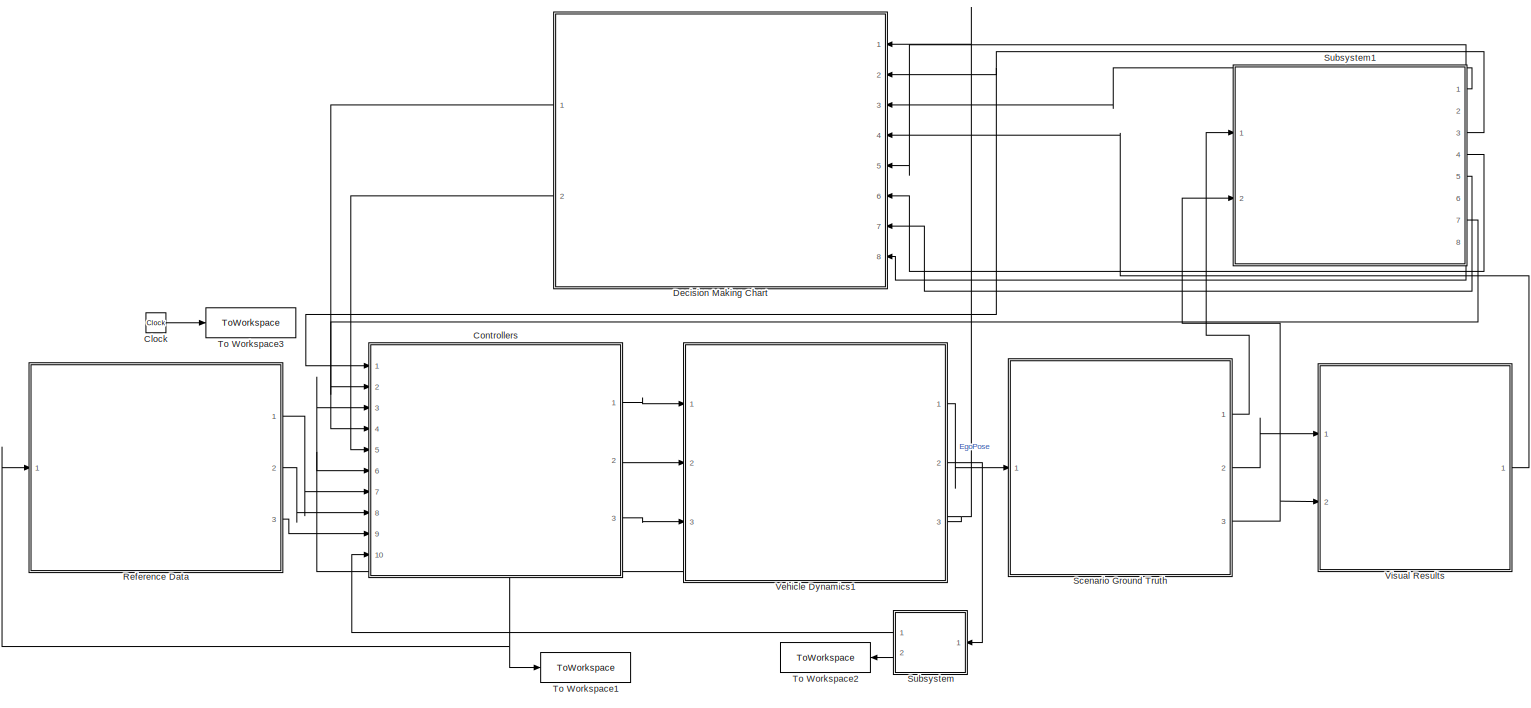
[diagram: root canvas - part 1/1, most of the canvas]
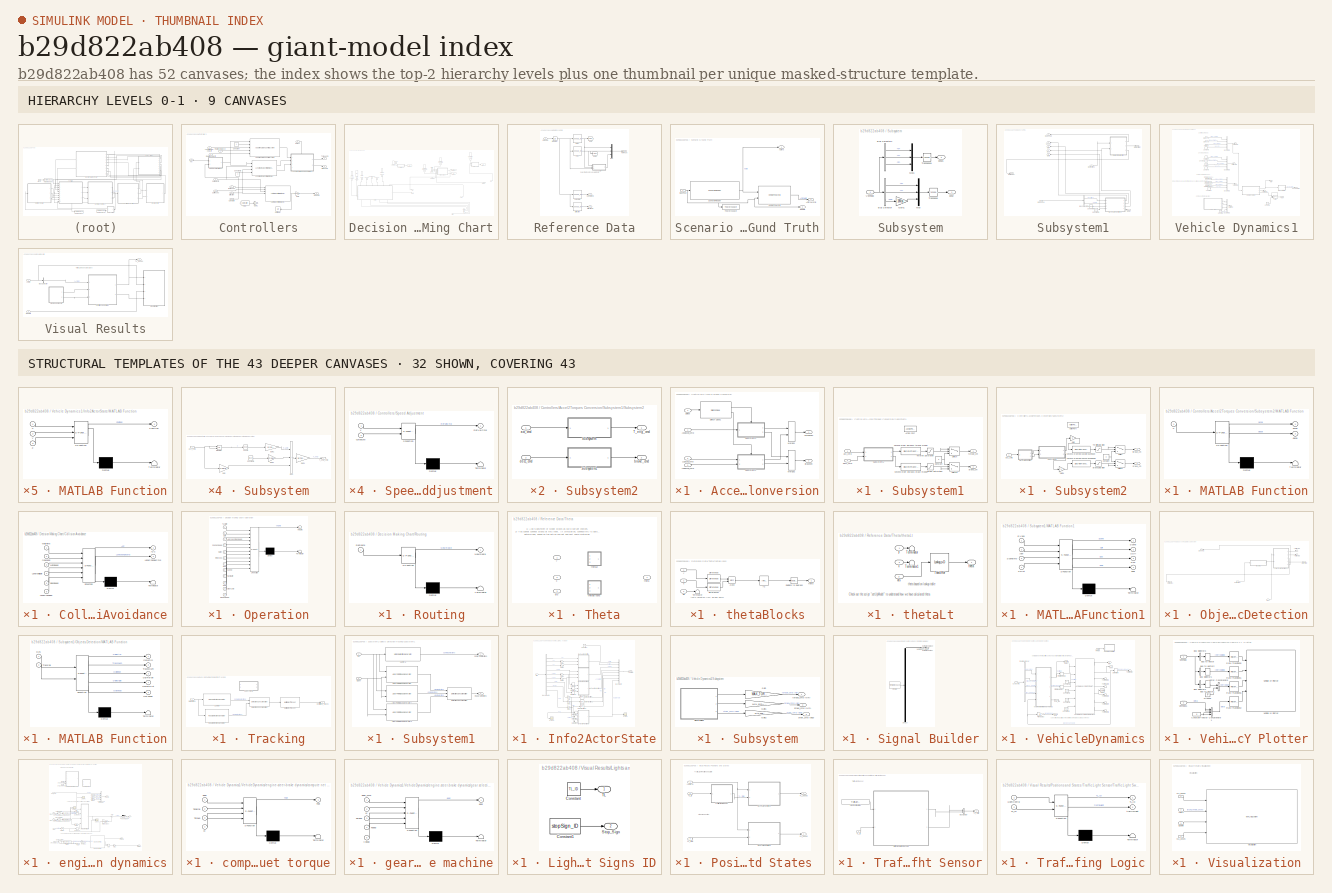
[diagram: thumbnail index - top-2 hierarchy levels (9 canvases) + 32 structural-template representatives of the remaining 43 canvases]
MODEL slx_b29d822ab408
KIND model
CONFIG AbsTol = auto
CONFIG EnableMultiTasking = off
CONFIG FixedStep = auto
CONFIG MaxStep = auto
CONFIG MinStep = auto
CONFIG RelTol = 1e-3
CONFIG SampleTimeConstraint = Unconstrained
CONFIG SolverName = VariableStepAuto
CONFIG StartTime = 0.0
CONFIG StopTime = inf
WORKSPACE source: mxarray member
WORKSPACE firstWarning = 1
WORKSPACE originalScenarioChecksum = '114339432DE22364D47BB28FC96DC10C'
BLOCK [Clock] Clock
  DisplayTime = on
BLOCK [SubSystem] Controllers
  Ports = [10, 3]
  RequestExecContextInheritance = off
BLOCK [SubSystem] Controllers/Accel2Torques Conversion
  PortSchema = {"entries":[{"content":{"sides":[{"content":{"connectorIds":["In1","In2","In3"]},"type":"ConnectorPlacement.EquallySpacedRectSide","uuid":"a23b1a10-3bcb-40a0-900c-c9a3f160b173"},{"content":{"connectorIds":["Out1","Out2"],"side":"RIGHT"},"type":"ConnectorPlacement.EquallySpacedRectSide","uuid":"88840b66-912f-4184-aeec-297642319416"},{"content":{"connectorIds":["In4"],"side":"TOP"},"type":"Connector...<+264ch>
  Ports = [4, 2]
  RequestExecContextInheritance = off
BLOCK [Inport] Controllers/Accel2Torques Conversion/ACCaccel_cmd
BLOCK [Outport] Controllers/Accel2Torques Conversion/BrakeCm
  Port = 2
BLOCK [Inport] Controllers/Accel2Torques Conversion/LCaccel_cmd
  Port = 2
BLOCK [Inport] Controllers/Accel2Torques Conversion/LCdeccel_cmd
  Port = 3
BLOCK [Merge] Controllers/Accel2Torques Conversion/Merge1
  Ports = [2, 1]
BLOCK [Merge] Controllers/Accel2Torques Conversion/Merge2
  Ports = [2, 1]
BLOCK [Inport] Controllers/Accel2Torques Conversion/Select
  Port = 4
BLOCK [SubSystem] Controllers/Accel2Torques Conversion/Subsystem1
  Ports = [2, 2, 0, 0, 0, 0, 0, 1]
  RequestExecContextInheritance = off
BLOCK [ActionPort] Controllers/Accel2Torques Conversion/Subsystem1/Action Port
  ActionPortLabel = case [ 0 ]:
BLOCK [Saturate] Controllers/Accel2Torques Conversion/Subsystem1/Brake Saturation
  LowerLimit = MIN_BRAKE
  UpperLimit = MAX_BRAKE
BLOCK [Constant] Controllers/Accel2Torques Conversion/Subsystem1/Constant
  Value = 0
BLOCK [SubSystem] Controllers/Accel2Torques Conversion/Subsystem1/Subsystem2
  Ports = [2, 2]
  RequestExecContextInheritance = off
BLOCK [SubSystem] Controllers/Accel2Torques Conversion/Subsystem1/Subsystem2/Subsystem
  Ports = [1, 1]
  RequestExecContextInheritance = off
BLOCK [Constant] Controllers/Accel2Torques Conversion/Subsystem1/Subsystem2/Subsystem/Constant1
  Value = MCAR
BLOCK [Gain] Controllers/Accel2Torques Conversion/Subsystem1/Subsystem2/Subsystem/Gain
  Gain = 1.1*MCAR
BLOCK [Gain] Controllers/Accel2Torques Conversion/Subsystem1/Subsystem2/Subsystem/Gain1
  Gain = 1.2*0.3*2/2
BLOCK [Gain] Controllers/Accel2Torques Conversion/Subsystem1/Subsystem2/Subsystem/Gain2
  Gain = 0.7*9.81
BLOCK [Gain] Controllers/Accel2Torques Conversion/Subsystem1/Subsystem2/Subsystem/Gain4
  Gain = R/(7.05*0.8)
BLOCK [Integrator] Controllers/Accel2Torques Conversion/Subsystem1/Subsystem2/Subsystem/Integrator
  ExternalReset = falling
  Ports = [2, 1]
BLOCK [Math] Controllers/Accel2Torques Conversion/Subsystem1/Subsystem2/Subsystem/Square
  Operator = square
  Ports = [1, 1]
BLOCK [Sum] Controllers/Accel2Torques Conversion/Subsystem1/Subsystem2/Subsystem/Sum
  IconShape = rectangular
  Inputs = +++
  Ports = [3, 1]
BLOCK [Outport] Controllers/Accel2Torques Conversion/Subsystem1/Subsystem2/Subsystem/T_eng_cmd
BLOCK [Inport] Controllers/Accel2Torques Conversion/Subsystem1/Subsystem2/Subsystem/acc_cmd
BLOCK [SubSystem] Controllers/Accel2Torques Conversion/Subsystem1/Subsystem2/Subsystem1
  Ports = [1, 1]
  RequestExecContextInheritance = off
BLOCK [Constant] Controllers/Accel2Torques Conversion/Subsystem1/Subsystem2/Subsystem1/Constant1
  Value = MCAR
BLOCK [Gain] Controllers/Accel2Torques Conversion/Subsystem1/Subsystem2/Subsystem1/Gain
  Gain = 1.1*MCAR
BLOCK [Gain] Controllers/Accel2Torques Conversion/Subsystem1/Subsystem2/Subsystem1/Gain1
  Gain = 1.2*0.3*2/2
BLOCK [Gain] Controllers/Accel2Torques Conversion/Subsystem1/Subsystem2/Subsystem1/Gain2
  Gain = 0.7*9.81
BLOCK [Gain] Controllers/Accel2Torques Conversion/Subsystem1/Subsystem2/Subsystem1/Gain4
  Gain = -R/(7.05*0.8)
BLOCK [Integrator] Controllers/Accel2Torques Conversion/Subsystem1/Subsystem2/Subsystem1/Integrator
  ExternalReset = falling
  Ports = [2, 1]
BLOCK [Math] Controllers/Accel2Torques Conversion/Subsystem1/Subsystem2/Subsystem1/Square
  Operator = square
  Ports = [1, 1]
BLOCK [Sum] Controllers/Accel2Torques Conversion/Subsystem1/Subsystem2/Subsystem1/Sum
  IconShape = rectangular
  Inputs = +++
  Ports = [3, 1]
BLOCK [Outport] Controllers/Accel2Torques Conversion/Subsystem1/Subsystem2/Subsystem1/T_brake_cmd
BLOCK [Inport] Controllers/Accel2Torques Conversion/Subsystem1/Subsystem2/Subsystem1/decc_cmd
BLOCK [Outport] Controllers/Accel2Torques Conversion/Subsystem1/Subsystem2/T_eng_cmd
BLOCK [Inport] Controllers/Accel2Torques Conversion/Subsystem1/Subsystem2/acc_cmd
BLOCK [Outport] Controllers/Accel2Torques Conversion/Subsystem1/Subsystem2/brake_cmd
  Port = 2
BLOCK [Inport] Controllers/Accel2Torques Conversion/Subsystem1/Subsystem2/decc_cmd
  Port = 2
BLOCK [Switch] Controllers/Accel2Torques Conversion/Subsystem1/Switch
  Criteria = u2 > Threshold
  InputSameDT = off
  SaturateOnIntegerOverflow = off
  Threshold = 500
BLOCK [Switch] Controllers/Accel2Torques Conversion/Subsystem1/Switch1
  Criteria = u2 > Threshold
  InputSameDT = off
  SaturateOnIntegerOverflow = off
  Threshold = -500
BLOCK [Saturate] Controllers/Accel2Torques Conversion/Subsystem1/Throttle Saturation
  LowerLimit = MIN_TORQUE
  UpperLimit = MAX_TORQUE
BLOCK [Inport] Controllers/Accel2Torques Conversion/Subsystem1/acc_cmd
BLOCK [Outport] Controllers/Accel2Torques Conversion/Subsystem1/brake_cm
  Port = 2
BLOCK [Inport] Controllers/Accel2Torques Conversion/Subsystem1/decc_cmd
  Port = 2
BLOCK [DiscreteTransferFcn] Controllers/Accel2Torques Conversion/Subsystem1/second-order low-pass brake model1
  Commented = through
  Denominator = NUMD_B
  InputPortMap = u0
  Numerator = DEND_B
  Ports = [1, 1]
  SampleTime = ts
BLOCK [DiscreteTransferFcn] Controllers/Accel2Torques Conversion/Subsystem1/second-order low-pass torque model
  Commented = through
  Denominator = NUMD_T
  InputPortMap = u0
  Numerator = DEND_T
  Ports = [1, 1]
  SampleTime = ts
BLOCK [Outport] Controllers/Accel2Torques Conversion/Subsystem1/torque_cm
BLOCK [SubSystem] Controllers/Accel2Torques Conversion/Subsystem2
  Ports = [1, 2, 0, 0, 0, 0, 0, 1]
  RequestExecContextInheritance = off
BLOCK [ActionPort] Controllers/Accel2Torques Conversion/Subsystem2/Action Port
  ActionPortLabel = case [ 1 ]:
BLOCK [Saturate] Controllers/Accel2Torques Conversion/Subsystem2/Brake Saturation
  LowerLimit = MIN_BRAKE
  UpperLimit = MAX_BRAKE
BLOCK [Constant] Controllers/Accel2Torques Conversion/Subsystem2/Constant
  Value = 0
BLOCK [Gain] Controllers/Accel2Torques Conversion/Subsystem2/Gain
  Commented = through
  Gain = 5
BLOCK [Gain] Controllers/Accel2Torques Conversion/Subsystem2/Gain1
  Commented = through
  Gain = 5
BLOCK [SubSystem] Controllers/Accel2Torques Conversion/Subsystem2/MATLAB Function
  ErrorFcn = Stateflow.Translate.translate
  PermitHierarchicalResolution = ExplicitOnly
  Ports = [1, 2]
  RequestExecContextInheritance = off
  SFBlockType = MATLAB Function
  TreatAsAtomicUnit = on
BLOCK [Demux] Controllers/Accel2Torques Conversion/Subsystem2/MATLAB Function/ Demux 
  Outputs = 1
  Ports = [1, 1]
BLOCK [S-Function] Controllers/Accel2Torques Conversion/Subsystem2/MATLAB Function/ SFunction 
  EnableBusSupport = on
  FunctionName = sf_sfun
  PortCounts = [1 3]
  Ports = [1, 3]
  SFcnIsStateOwnerBlock = off
  SFunctionDeploymentMode = off
  Tag = Stateflow S-Function 10
BLOCK [Terminator] Controllers/Accel2Torques Conversion/Subsystem2/MATLAB Function/ Terminator 
BLOCK [Outport] Controllers/Accel2Torques Conversion/Subsystem2/MATLAB Function/accel
  VectorParamsAs1DForOutWhenUnconnected = off
BLOCK [Outport] Controllers/Accel2Torques Conversion/Subsystem2/MATLAB Function/decel
  Port = 2
BLOCK [Inport] Controllers/Accel2Torques Conversion/Subsystem2/MATLAB Function/u
BLOCK [SubSystem] Controllers/Accel2Torques Conversion/Subsystem2/Subsystem2
  Ports = [2, 2]
  RequestExecContextInheritance = off
BLOCK [SubSystem] Controllers/Accel2Torques Conversion/Subsystem2/Subsystem2/Subsystem
  Ports = [1, 1]
  RequestExecContextInheritance = off
BLOCK [Constant] Controllers/Accel2Torques Conversion/Subsystem2/Subsystem2/Subsystem/Constant1
  Value = MCAR
BLOCK [Gain] Controllers/Accel2Torques Conversion/Subsystem2/Subsystem2/Subsystem/Gain
  Gain = 1.1*MCAR
BLOCK [Gain] Controllers/Accel2Torques Conversion/Subsystem2/Subsystem2/Subsystem/Gain1
  Gain = 1.2*0.3*2/2
BLOCK [Gain] Controllers/Accel2Torques Conversion/Subsystem2/Subsystem2/Subsystem/Gain2
  Gain = 0.7*9.81
BLOCK [Gain] Controllers/Accel2Torques Conversion/Subsystem2/Subsystem2/Subsystem/Gain4
  Gain = R/(7.05*0.8)
BLOCK [Integrator] Controllers/Accel2Torques Conversion/Subsystem2/Subsystem2/Subsystem/Integrator
  ExternalReset = falling
  Ports = [2, 1]
BLOCK [Math] Controllers/Accel2Torques Conversion/Subsystem2/Subsystem2/Subsystem/Square
  Operator = square
  Ports = [1, 1]
BLOCK [Sum] Controllers/Accel2Torques Conversion/Subsystem2/Subsystem2/Subsystem/Sum
  IconShape = rectangular
  Inputs = +++
  Ports = [3, 1]
BLOCK [Outport] Controllers/Accel2Torques Conversion/Subsystem2/Subsystem2/Subsystem/T_eng_cmd
BLOCK [Inport] Controllers/Accel2Torques Conversion/Subsystem2/Subsystem2/Subsystem/acc_cmd
BLOCK [SubSystem] Controllers/Accel2Torques Conversion/Subsystem2/Subsystem2/Subsystem1
  Ports = [1, 1]
  RequestExecContextInheritance = off
BLOCK [Constant] Controllers/Accel2Torques Conversion/Subsystem2/Subsystem2/Subsystem1/Constant1
  Value = MCAR
BLOCK [Gain] Controllers/Accel2Torques Conversion/Subsystem2/Subsystem2/Subsystem1/Gain
  Gain = 1.1*MCAR
BLOCK [Gain] Controllers/Accel2Torques Conversion/Subsystem2/Subsystem2/Subsystem1/Gain1
  Gain = 1.2*0.3*2/2
BLOCK [Gain] Controllers/Accel2Torques Conversion/Subsystem2/Subsystem2/Subsystem1/Gain2
  Gain = 0.7*9.81
BLOCK [Gain] Controllers/Accel2Torques Conversion/Subsystem2/Subsystem2/Subsystem1/Gain4
  Gain = -R/(7.05*0.8)
BLOCK [Integrator] Controllers/Accel2Torques Conversion/Subsystem2/Subsystem2/Subsystem1/Integrator
  ExternalReset = falling
  Ports = [2, 1]
BLOCK [Math] Controllers/Accel2Torques Conversion/Subsystem2/Subsystem2/Subsystem1/Square
  Operator = square
  Ports = [1, 1]
BLOCK [Sum] Controllers/Accel2Torques Conversion/Subsystem2/Subsystem2/Subsystem1/Sum
  IconShape = rectangular
  Inputs = +++
  Ports = [3, 1]
BLOCK [Outport] Controllers/Accel2Torques Conversion/Subsystem2/Subsystem2/Subsystem1/T_brake_cmd
BLOCK [Inport] Controllers/Accel2Torques Conversion/Subsystem2/Subsystem2/Subsystem1/decc_cmd
BLOCK [Outport] Controllers/Accel2Torques Conversion/Subsystem2/Subsystem2/T_eng_cmd
BLOCK [Inport] Controllers/Accel2Torques Conversion/Subsystem2/Subsystem2/acc_cmd
BLOCK [Outport] Controllers/Accel2Torques Conversion/Subsystem2/Subsystem2/brake_cmd
  Port = 2
BLOCK [Inport] Controllers/Accel2Torques Conversion/Subsystem2/Subsystem2/decc_cmd
  Port = 2
BLOCK [Switch] Controllers/Accel2Torques Conversion/Subsystem2/Switch
  Criteria = u2 > Threshold
  InputSameDT = off
  SaturateOnIntegerOverflow = off
  Threshold = 500
BLOCK [Switch] Controllers/Accel2Torques Conversion/Subsystem2/Switch1
  Criteria = u2 > Threshold
  InputSameDT = off
  SaturateOnIntegerOverflow = off
  Threshold = -500
BLOCK [Saturate] Controllers/Accel2Torques Conversion/Subsystem2/Throttle Saturation
  LowerLimit = MIN_TORQUE
  UpperLimit = MAX_TORQUE
BLOCK [Inport] Controllers/Accel2Torques Conversion/Subsystem2/acc_cmd
BLOCK [Outport] Controllers/Accel2Torques Conversion/Subsystem2/brake_cm
  Port = 2
BLOCK [DiscreteTransferFcn] Controllers/Accel2Torques Conversion/Subsystem2/second-order low-pass brake model1
  Commented = through
  Denominator = NUMD_B
  InputPortMap = u0
  Numerator = DEND_B
  Ports = [1, 1]
  SampleTime = ts
BLOCK [DiscreteTransferFcn] Controllers/Accel2Torques Conversion/Subsystem2/second-order low-pass torque model
  Commented = through
  Denominator = NUMD_T
  InputPortMap = u0
  Numerator = DEND_T
  Ports = [1, 1]
  SampleTime = ts
BLOCK [Outport] Controllers/Accel2Torques Conversion/Subsystem2/torque_cm
BLOCK [SwitchCase] Controllers/Accel2Torques Conversion/Switch Case1
  CaseConditions = {1, 0}
  Ports = [1, 2]
  ShowDefaultCase = off
BLOCK [Outport] Controllers/Accel2Torques Conversion/TorgueCm
BLOCK [Reference] Controllers/Adaptive Cruise Control System  REF=mpcadaslib/Adaptive Cruise Control System
  Ports = [5, 1]
  SourceBlock = mpcadaslib/Adaptive Cruise Control System
  SourceProductBaseCode = MP
  SourceType = Adaptive cruise control (ACC) system
BLOCK [Outport] Controllers/BrakeCm
  Port = 2
BLOCK [Constant] Controllers/Constant
  Value = 0
BLOCK [Constant] Controllers/Constant3
  Value = 0
BLOCK [Inport] Controllers/CurrPoses
  NameLocation = top
  Port = 10
BLOCK [Inport] Controllers/CurrVelocity
  Port = 6
BLOCK [Inport] Controllers/Curvature
  Port = 9
BLOCK [Inport] Controllers/Direction
  Port = 8
BLOCK [From] Controllers/From
  GotoTag = yawrate
  IconDisplay = Signal name
  TagVisibility = global
BLOCK [Gain] Controllers/Gain
  Gain = 1/STEER_RATIO
BLOCK [Gain] Controllers/Gain1
  Gain = 180/pi
BLOCK [Reference] Controllers/Lateral Controller Stanley  REF=drivingvehiclecontroller/Lateral Controller Stanley
  Ports = [7, 1]
  SourceBlock = drivingvehiclecontroller/Lateral Controller Stanley
  SourceProductBaseCode = DR
  SourceType = Lateral Controller Stanley
BLOCK [Reference] Controllers/Longitudinal Controller Stanley  REF=drivingvehiclecontroller/Longitudinal Controller Stanley
  Ports = [4, 2]
  SourceBlock = drivingvehiclecontroller/Longitudinal Controller Stanley
  SourceProductBaseCode = DR
  SourceType = Longitudinal Controller Stanley
BLOCK [Inport] Controllers/Longitudinal velocity
  NameLocation = top
  Port = 3
BLOCK [Inport] Controllers/RefPoses
  Port = 7
BLOCK [Inport] Controllers/Relative distance
BLOCK [Inport] Controllers/Relative velocity
  Port = 4
BLOCK [Inport] Controllers/Select
  Port = 2
BLOCK [SubSystem] Controllers/Speed Adjustment
  ErrorFcn = Stateflow.Translate.translate
  PermitHierarchicalResolution = ExplicitOnly
  Ports = [2, 1]
  RequestExecContextInheritance = off
  SFBlockType = MATLAB Function
  TreatAsAtomicUnit = on
BLOCK [Demux] Controllers/Speed Adjustment/ Demux 
  Outputs = 1
  Ports = [1, 1]
BLOCK [S-Function] Controllers/Speed Adjustment/ SFunction 
  EnableBusSupport = on
  FunctionName = sf_sfun
  PortCounts = [2 2]
  Ports = [2, 2]
  SFcnIsStateOwnerBlock = off
  SFunctionDeploymentMode = off
  Tag = Stateflow S-Function 11
BLOCK [Terminator] Controllers/Speed Adjustment/ Terminator 
BLOCK [Outport] Controllers/Speed Adjustment/RefVelCmd
BLOCK [Inport] Controllers/Speed Adjustment/curvature
  Port = 2
BLOCK [Inport] Controllers/Speed Adjustment/v
BLOCK [Outport] Controllers/SteerCmd
  Port = 3
BLOCK [Outport] Controllers/TorgueCm
BLOCK [UnitDelay] Controllers/Unit Delay
  HasFrameUpgradeWarning = on
  NameLocation = top
  SampleTime = -1
BLOCK [Inport] Controllers/vel
  Port = 5
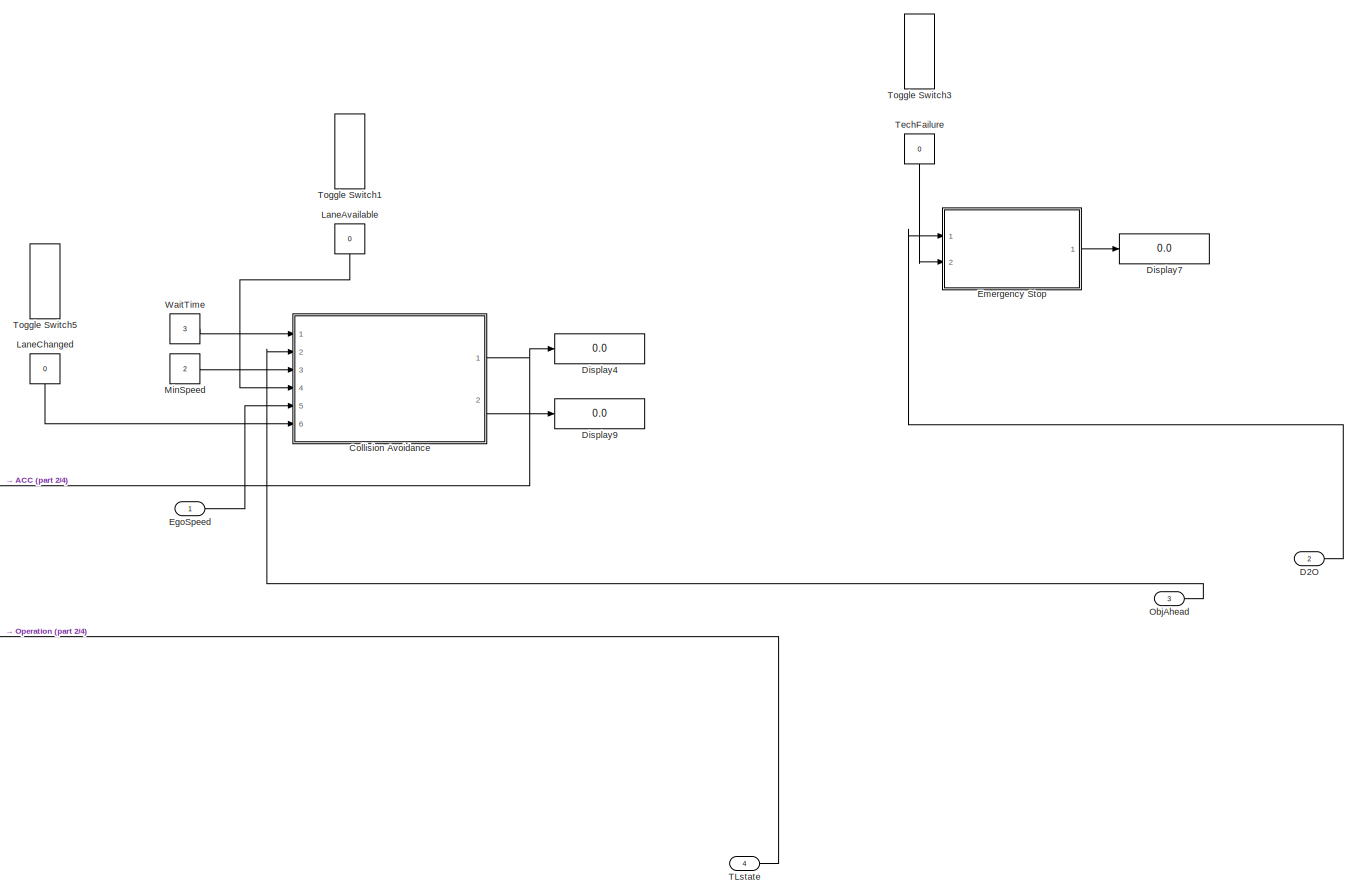
[diagram: Decision Making Chart - part 1/4, middle right region]
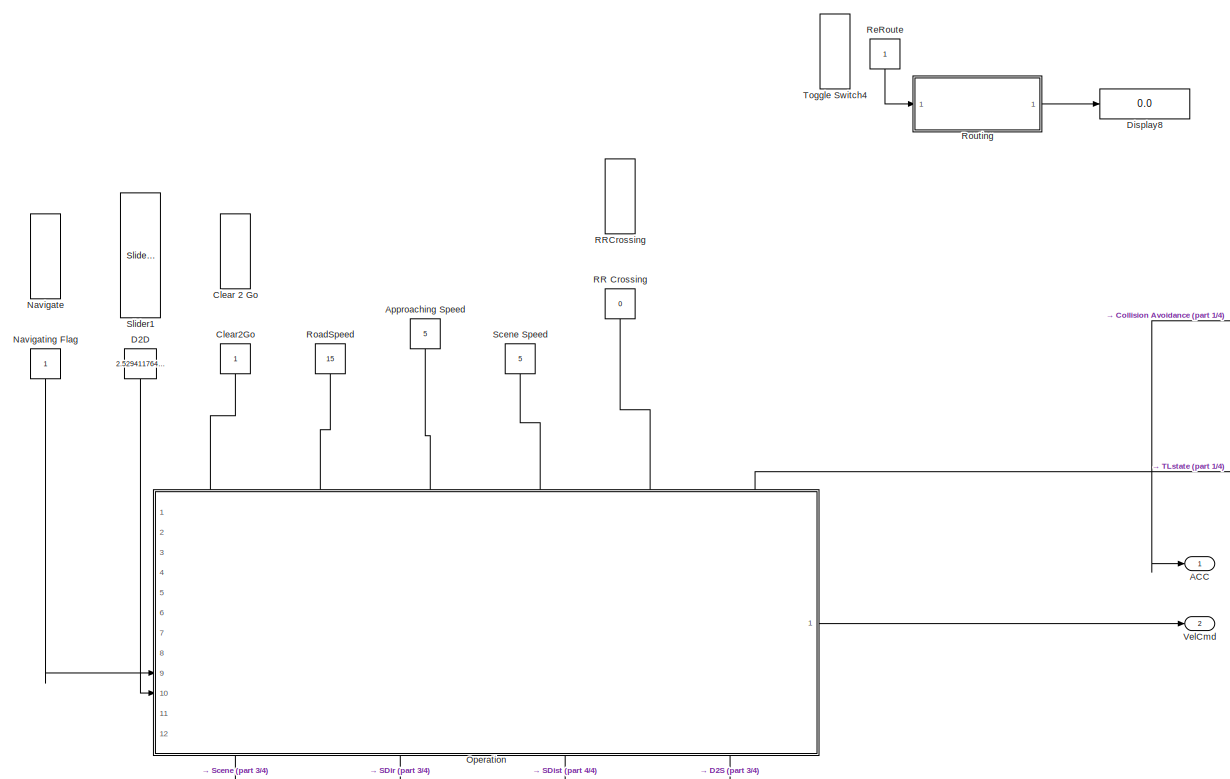
[diagram: Decision Making Chart - part 2/4, middle left region]
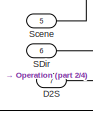
[diagram: Decision Making Chart - part 3/4, bottom right region]
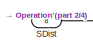
[diagram: Decision Making Chart - part 4/4, bottom right region]
BLOCK [SubSystem] Decision Making Chart
  NameLocation = top
  Ports = [8, 2]
  RequestExecContextInheritance = off
BLOCK [Outport] Decision Making Chart/ACC
BLOCK [Constant] Decision Making Chart/Approaching Speed
  NameLocation = top
  Value = 5
BLOCK [ToggleSwitchBlock] Decision Making Chart/Clear 2 Go
BLOCK [Constant] Decision Making Chart/Clear2Go
  NameLocation = top
BLOCK [SubSystem] Decision Making Chart/Collision Avoidance
  ErrorFcn = Stateflow.Translate.translate
  PermitHierarchicalResolution = ExplicitOnly
  Ports = [6, 2]
  RequestExecContextInheritance = off
  SFBlockType = Chart
  TreatAsAtomicUnit = on
BLOCK [Demux] Decision Making Chart/Collision Avoidance/ Demux 
  Outputs = 1
  Ports = [1, 1]
BLOCK [S-Function] Decision Making Chart/Collision Avoidance/ SFunction 
  EnableBusSupport = on
  FunctionName = sf_sfun
  PortCounts = [6 3]
  Ports = [6, 3]
  SFcnIsStateOwnerBlock = off
  SFunctionDeploymentMode = off
  Tag = Stateflow S-Function 9
BLOCK [Terminator] Decision Making Chart/Collision Avoidance/ Terminator 
BLOCK [Outport] Decision Making Chart/Collision Avoidance/ACC
BLOCK [Inport] Decision Making Chart/Collision Avoidance/EgoSpeed
  Port = 5
BLOCK [Inport] Decision Making Chart/Collision Avoidance/LaneAvailable
  Port = 4
BLOCK [Outport] Decision Making Chart/Collision Avoidance/LaneChangeCmd
  Port = 2
BLOCK [Inport] Decision Making Chart/Collision Avoidance/LaneChanged
  Port = 6
BLOCK [Inport] Decision Making Chart/Collision Avoidance/MinSpeed
  Port = 3
BLOCK [Inport] Decision Making Chart/Collision Avoidance/ObjAhead
  Port = 2
BLOCK [Inport] Decision Making Chart/Collision Avoidance/WaitTime
BLOCK [Constant] Decision Making Chart/D2D
  NameLocation = top
  Value = 2.529411764705882
BLOCK [Inport] Decision Making Chart/D2O
  Port = 2
BLOCK [Inport] Decision Making Chart/D2S
  Port = 7
BLOCK [Display] Decision Making Chart/Display4
  Decimation = 1
  Ports = [1]
BLOCK [Display] Decision Making Chart/Display7
  Decimation = 1
  Ports = [1]
BLOCK [Display] Decision Making Chart/Display8
  Decimation = 1
  Ports = [1]
BLOCK [Display] Decision Making Chart/Display9
  Decimation = 1
  Ports = [1]
BLOCK [Inport] Decision Making Chart/EgoSpeed
BLOCK [SubSystem] Decision Making Chart/Emergency Stop
  ErrorFcn = Stateflow.Translate.translate
  PermitHierarchicalResolution = ExplicitOnly
  Ports = [2, 1]
  RequestExecContextInheritance = off
  SFBlockType = Chart
  TreatAsAtomicUnit = on
BLOCK [Demux] Decision Making Chart/Emergency Stop/ Demux 
  Outputs = 1
  Ports = [1, 1]
BLOCK [S-Function] Decision Making Chart/Emergency Stop/ SFunction 
  EnableBusSupport = on
  FunctionName = sf_sfun
  PortCounts = [2 2]
  Ports = [2, 2]
  SFcnIsStateOwnerBlock = off
  SFunctionDeploymentMode = off
  Tag = Stateflow S-Function 8
BLOCK [Terminator] Decision Making Chart/Emergency Stop/ Terminator 
BLOCK [Inport] Decision Making Chart/Emergency Stop/D2O
BLOCK [Outport] Decision Making Chart/Emergency Stop/EStop
BLOCK [Inport] Decision Making Chart/Emergency Stop/TechFailure
  Port = 2
BLOCK [Constant] Decision Making Chart/LaneAvailable
  NameLocation = top
  Value = 0
BLOCK [Constant] Decision Making Chart/LaneChanged
  NameLocation = top
  Value = 0
BLOCK [Constant] Decision Making Chart/MinSpeed
  NameLocation = left
  Value = 2
BLOCK [ToggleSwitchBlock] Decision Making Chart/Navigate
BLOCK [Constant] Decision Making Chart/Navigating Flag
  NameLocation = left
BLOCK [Inport] Decision Making Chart/ObjAhead
  Port = 3
BLOCK [SubSystem] Decision Making Chart/Operation
  ErrorFcn = Stateflow.Translate.translate
  PermitHierarchicalResolution = ExplicitOnly
  PortSchema = {"entries":[{"content":{"sides":[{"content":{"connectorIds":["In10","In9"]},"type":"ConnectorPlacement.EquallySpacedRectSide","uuid":"81aca70f-0947-49fb-b60a-be241e44193b"},{"content":{"connectorIds":["Out1"],"side":"RIGHT"},"type":"ConnectorPlacement.EquallySpacedRectSide","uuid":"e7b9645e-3711-4964-ac9b-0199dd335e99"},{"content":{"connectorIds":["In11","In12","In3","In4","In6","In1"],"side":"TOP...<+451ch>
  Ports = [12, 1]
  RequestExecContextInheritance = off
  SFBlockType = Chart
  TreatAsAtomicUnit = on
BLOCK [Demux] Decision Making Chart/Operation/ Demux 
  Outputs = 1
  Ports = [1, 1]
BLOCK [S-Function] Decision Making Chart/Operation/ SFunction 
  EnableBusSupport = on
  FunctionName = sf_sfun
  PortCounts = [12 2]
  Ports = [12, 2]
  SFcnIsStateOwnerBlock = off
  SFunctionDeploymentMode = off
  Tag = Stateflow S-Function 21
BLOCK [Terminator] Decision Making Chart/Operation/ Terminator 
BLOCK [Inport] Decision Making Chart/Operation/ApproachingSpeed
  Port = 3
BLOCK [Inport] Decision Making Chart/Operation/Clear2Go
  Port = 11
BLOCK [Inport] Decision Making Chart/Operation/D2D
  Port = 10
BLOCK [Inport] Decision Making Chart/Operation/D2S
  Port = 7
BLOCK [Inport] Decision Making Chart/Operation/Navigate
  Port = 9
BLOCK [Inport] Decision Making Chart/Operation/RRCross
  Port = 6
BLOCK [Inport] Decision Making Chart/Operation/RoadSpeed
  Port = 12
BLOCK [Inport] Decision Making Chart/Operation/SDir
  Port = 2
BLOCK [Inport] Decision Making Chart/Operation/SDist
  Port = 5
BLOCK [Inport] Decision Making Chart/Operation/Scene
  Port = 8
BLOCK [Inport] Decision Making Chart/Operation/SceneSpeed
  Port = 4
BLOCK [Inport] Decision Making Chart/Operation/TLstate
BLOCK [Outport] Decision Making Chart/Operation/VelCmd
BLOCK [Constant] Decision Making Chart/RR Crossing
  NameLocation = top
  Value = 0
BLOCK [ToggleSwitchBlock] Decision Making Chart/RRCrossing
BLOCK [Constant] Decision Making Chart/ReRoute
  NameLocation = top
BLOCK [Constant] Decision Making Chart/RoadSpeed
  NameLocation = top
  Value = 15
BLOCK [SubSystem] Decision Making Chart/Routing
  ErrorFcn = Stateflow.Translate.translate
  PermitHierarchicalResolution = ExplicitOnly
  Ports = [1, 1]
  RequestExecContextInheritance = off
  SFBlockType = Chart
  TreatAsAtomicUnit = on
BLOCK [Demux] Decision Making Chart/Routing/ Demux 
  Outputs = 1
  Ports = [1, 1]
BLOCK [S-Function] Decision Making Chart/Routing/ SFunction 
  EnableBusSupport = on
  FunctionName = sf_sfun
  PortCounts = [1 2]
  Ports = [1, 2]
  SFcnIsStateOwnerBlock = off
  SFunctionDeploymentMode = off
  Tag = Stateflow S-Function 6
BLOCK [Terminator] Decision Making Chart/Routing/ Terminator 
BLOCK [Outport] Decision Making Chart/Routing/NewRoute
BLOCK [Inport] Decision Making Chart/Routing/ReRoute
BLOCK [Inport] Decision Making Chart/SDir
  Port = 6
BLOCK [Inport] Decision Making Chart/SDist
  Port = 8
BLOCK [Inport] Decision Making Chart/Scene
  Port = 5
BLOCK [Constant] Decision Making Chart/Scene Speed
  NameLocation = top
  Value = 5
BLOCK [SliderBlock] Decision Making Chart/Slider1
  NameLocation = left
  ScaleMax = 5
BLOCK [Inport] Decision Making Chart/TLstate
  Port = 4
BLOCK [Constant] Decision Making Chart/TechFailure
  NameLocation = top
  Value = 0
BLOCK [ToggleSwitchBlock] Decision Making Chart/Toggle Switch1
BLOCK [ToggleSwitchBlock] Decision Making Chart/Toggle Switch3
BLOCK [ToggleSwitchBlock] Decision Making Chart/Toggle Switch4
BLOCK [ToggleSwitchBlock] Decision Making Chart/Toggle Switch5
BLOCK [Outport] Decision Making Chart/VelCmd
  Port = 2
BLOCK [Constant] Decision Making Chart/WaitTime
  NameLocation = left
  Value = 3
BLOCK [SubSystem] Reference Data
  Ports = [1, 3]
  RequestExecContextInheritance = off
  VariantControl = Stanley
BLOCK [Lookup_n-D] Reference Data/Curvature
  BreakpointsForDimension1 = gradbp
  InputPortMap = u0
  InternalRulePriority = Speed
  NumberOfTableDimensions = 1
  Ports = [1, 1]
  RndMeth = Simplest
  Table = curvature
BLOCK [Outport] Reference Data/CurvatureO
  Port = 3
BLOCK [Lookup_n-D] Reference Data/Direction
  BreakpointsForDimension1 = gradbp
  InputPortMap = u0
  InternalRulePriority = Speed
  NumberOfTableDimensions = 1
  Ports = [1, 1]
  RndMeth = Simplest
  Table = direction
BLOCK [Outport] Reference Data/DirectionO
  Port = 2
BLOCK [Goto] Reference Data/Goto
  GotoTag = xRef
  TagVisibility = global
BLOCK [Goto] Reference Data/Goto1
  GotoTag = yRef
  TagVisibility = global
BLOCK [Integrator] Reference Data/Integrator
  Ports = [1, 1]
BLOCK [Mux] Reference Data/Mux
  DisplayOption = bar
  Inputs = 3
  Ports = [3, 1]
BLOCK [Outport] Reference Data/RefPose
BLOCK [SubSystem] Reference Data/Theta
  LabelModeActiveChoice = thetaSimulinkBlock
  Ports = [3, 1]
  RequestExecContextInheritance = off
  Variant = on
  VariantControlMode = label
BLOCK [Inport] Reference Data/Theta/dis
  Port = 3
BLOCK [Outport] Reference Data/Theta/theta
BLOCK [SubSystem] Reference Data/Theta/thetaBlocks
  Ports = [3, 1]
  RequestExecContextInheritance = off
  VariantControl = thetaSimulinkBlock
BLOCK [Trigonometry] Reference Data/Theta/thetaBlocks/Atan2
  ApproximationMethod = CORDIC
  Operator = atan2
  Ports = [2, 1]
BLOCK [Reference] Reference Data/Theta/thetaBlocks/Difference  REF=simulink/Discrete/Difference
  Ports = [1, 1]
  SourceBlock = simulink/Discrete/Difference
  SourceProductBaseCode = SL
  SourceType = Difference
BLOCK [Reference] Reference Data/Theta/thetaBlocks/Difference1  REF=simulink/Discrete/Difference
  Ports = [1, 1]
  SourceBlock = simulink/Discrete/Difference
  SourceProductBaseCode = SL
  SourceType = Difference
BLOCK [InitialCondition] Reference Data/Theta/thetaBlocks/IC
  Value = psi_o
BLOCK [Reference] Reference Data/Theta/thetaBlocks/Radians to Degrees  REF=simulink_extras/Transformations/Radians
to Degrees
  Ports = [1, 1]
  SourceBlock = simulink_extras/Transformations/Radians\nto Degrees
  SourceProductBaseCode = SL
  SourceType = RadiansToDegrees
BLOCK [Terminator] Reference Data/Theta/thetaBlocks/Terminator
BLOCK [Inport] Reference Data/Theta/thetaBlocks/dis
  Port = 3
BLOCK [Outport] Reference Data/Theta/thetaBlocks/theta
BLOCK [Inport] Reference Data/Theta/thetaBlocks/x
  Port = 2
BLOCK [Inport] Reference Data/Theta/thetaBlocks/y
BLOCK [SubSystem] Reference Data/Theta/thetaLt
  Ports = [3, 1]
  RequestExecContextInheritance = off
  VariantControl = thetaLookUpTable
BLOCK [Terminator] Reference Data/Theta/thetaLt/Terminator
BLOCK [Terminator] Reference Data/Theta/thetaLt/Terminator1
BLOCK [Lookup_n-D] Reference Data/Theta/thetaLt/Theta Ref
  BreakpointsForDimension1 = gradbp
  InputPortMap = u0
  InternalRulePriority = Speed
  NumberOfTableDimensions = 1
  Ports = [1, 1]
  RndMeth = Simplest
  Table = thetaRefs
BLOCK [Inport] Reference Data/Theta/thetaLt/dis
  Port = 3
BLOCK [Outport] Reference Data/Theta/thetaLt/theta
BLOCK [Inport] Reference Data/Theta/thetaLt/x
  Port = 2
BLOCK [Inport] Reference Data/Theta/thetaLt/y
BLOCK [Inport] Reference Data/Theta/x
  Port = 2
BLOCK [Inport] Reference Data/Theta/y
BLOCK [Inport] Reference Data/VelFdbk
BLOCK [Lookup_n-D] Reference Data/X Ref
  BreakpointsForDimension1 = gradbp
  InputPortMap = u0
  InternalRulePriority = Speed
  NumberOfTableDimensions = 1
  Ports = [1, 1]
  RndMeth = Simplest
  Table = xRef2s
BLOCK [Lookup_n-D] Reference Data/Y Ref
  BreakpointsForDimension1 = gradbp
  InputPortMap = u0
  InternalRulePriority = Speed
  NumberOfTableDimensions = 1
  Ports = [1, 1]
  RndMeth = Simplest
  Table = yRef2s
BLOCK [SubSystem] Scenario Ground Truth
  Ports = [1, 3]
  RequestExecContextInheritance = off
BLOCK [Outport] Scenario Ground Truth/Actors
BLOCK [Outport] Scenario Ground Truth/ActorsWorld
  Port = 2
BLOCK [Outport] Scenario Ground Truth/EgoInfo
  Port = 3
BLOCK [Inport] Scenario Ground Truth/EgoPose
BLOCK [Reference] Scenario Ground Truth/Scenario Reader  REF=drivingscenarioandsensors/Scenario Reader
  Ports = [1, 1]
  SourceBlock = drivingscenarioandsensors/Scenario Reader
  SourceProductBaseCode = DR
  SourceType = driving.scenario.internal.ScenarioReader
BLOCK [ToWorkspace] Scenario Ground Truth/To Workspace
  FixptAsFi = on
  MaxDataPoints = inf
  Ports = [1]
  SampleTime = -1
  SaveFormat = Timeseries
  VariableName = EgoPose
BLOCK [Reference] Scenario Ground Truth/Vehicle To World  REF=drivingscenarioandsensors/Vehicle To World
  Ports = [2, 1]
  SourceBlock = drivingscenarioandsensors/Vehicle To World
  SourceProductBaseCode = DR
  SourceType = driving.scenario.internal.VehicleToWorld
BLOCK [SubSystem] Subsystem
  NameLocation = top
  Ports = [1, 2]
  RequestExecContextInheritance = off
BLOCK [BusSelector] Subsystem/Bus Selector
  OutputSignals = InertFrm.Cg.Disp.X,InertFrm.Cg.Disp.Y,InertFrm.Cg.Ang.psi
  Ports = [1, 3]
BLOCK [BusSelector] Subsystem/Bus Selector1
  OutputSignals = InertFrm.Cg.Disp.X,InertFrm.Cg.Disp.Y,InertFrm.Cg.Disp.Z
  Ports = [1, 3]
BLOCK [Gain] Subsystem/Gain1
  Gain = 180/pi
BLOCK [Mux] Subsystem/Mux
  DisplayOption = bar
  Inputs = 3
  Ports = [3, 1]
BLOCK [Mux] Subsystem/Mux1
  DisplayOption = bar
  Inputs = 3
  Ports = [3, 1]
BLOCK [Math] Subsystem/Transpose
  Operator = transpose
  Ports = [1, 1]
  SignedPower = on
BLOCK [Math] Subsystem/Transpose1
  Operator = transpose
  Ports = [1, 1]
  SignedPower = on
BLOCK [Inport] Subsystem/VehFdbk
BLOCK [Outport] Subsystem/pose
BLOCK [Outport] Subsystem/pose1
  Port = 2
BLOCK [SubSystem] Subsystem1
  Ports = [2, 8]
  RequestExecContextInheritance = off
BLOCK [BusSelector] Subsystem1/Bus Selector2
  OutputSignals = Position,Yaw
  Ports = [1, 2]
BLOCK [Constant] Subsystem1/Constant1
  Value = 25
BLOCK [Outport] Subsystem1/D2S
  Port = 5
BLOCK [Inport] Subsystem1/Detections
BLOCK [Inport] Subsystem1/EgoPose
  Port = 2
BLOCK [SubSystem] Subsystem1/MATLAB Function1
  ErrorFcn = Stateflow.Translate.translate
  PermitHierarchicalResolution = ExplicitOnly
  Ports = [4, 4]
  RequestExecContextInheritance = off
  SFBlockType = MATLAB Function
  TreatAsAtomicUnit = on
BLOCK [Demux] Subsystem1/MATLAB Function1/ Demux 
  Outputs = 1
  Ports = [1, 1]
BLOCK [S-Function] Subsystem1/MATLAB Function1/ SFunction 
  EnableBusSupport = on
  FunctionName = sf_sfun
  PortCounts = [4 5]
  Ports = [4, 5]
  SFcnIsStateOwnerBlock = off
  SFunctionDeploymentMode = off
  Tag = Stateflow S-Function 7
BLOCK [Terminator] Subsystem1/MATLAB Function1/ Terminator 
BLOCK [Outport] Subsystem1/MATLAB Function1/D2S
  Port = 3
BLOCK [Inport] Subsystem1/MATLAB Function1/EVpos
BLOCK [Outport] Subsystem1/MATLAB Function1/SDir
  Port = 2
BLOCK [Inport] Subsystem1/MATLAB Function1/SDist
  Port = 4
BLOCK [Outport] Subsystem1/MATLAB Function1/Scene
BLOCK [Inport] Subsystem1/MATLAB Function1/SceneInfo
  Port = 3
BLOCK [Outport] Subsystem1/MATLAB Function1/angl
  Port = 4
BLOCK [Inport] Subsystem1/MATLAB Function1/yaw
  Port = 2
BLOCK [Outport] Subsystem1/ObjAhead
BLOCK [Outport] Subsystem1/ObjRelVel
  Port = 7
BLOCK [Outport] Subsystem1/ObjectDist
  Port = 3
BLOCK [SubSystem] Subsystem1/Objects Detection
  Ports = [2, 3]
  RequestExecContextInheritance = off
BLOCK [Inport] Subsystem1/Objects Detection/D2S
  Port = 2
BLOCK [Inport] Subsystem1/Objects Detection/Detections
BLOCK [SubSystem] Subsystem1/Objects Detection/MATLAB Function
  ErrorFcn = Stateflow.Translate.translate
  PermitHierarchicalResolution = ExplicitOnly
  Ports = [2, 5]
  RequestExecContextInheritance = off
  SFBlockType = MATLAB Function
  TreatAsAtomicUnit = on
BLOCK [Demux] Subsystem1/Objects Detection/MATLAB Function/ Demux 
  Outputs = 1
  Ports = [1, 1]
BLOCK [S-Function] Subsystem1/Objects Detection/MATLAB Function/ SFunction 
  EnableBusSupport = on
  FunctionName = sf_sfun
  PortCounts = [2 6]
  Ports = [2, 6]
  SFcnIsStateOwnerBlock = off
  SFunctionDeploymentMode = off
  Tag = Stateflow S-Function 4
BLOCK [Terminator] Subsystem1/Objects Detection/MATLAB Function/ Terminator 
BLOCK [Inport] Subsystem1/Objects Detection/MATLAB Function/D2S
BLOCK [Outport] Subsystem1/Objects Detection/MATLAB Function/ObjAhead
  Port = 5
BLOCK [Outport] Subsystem1/Objects Detection/MATLAB Function/ObjRelVel
  Port = 3
BLOCK [Outport] Subsystem1/Objects Detection/MATLAB Function/ObjectDist
  Port = 4
BLOCK [Outport] Subsystem1/Objects Detection/MATLAB Function/ObjectID
BLOCK [Inport] Subsystem1/Objects Detection/MATLAB Function/Tracking
  Port = 2
BLOCK [Outport] Subsystem1/Objects Detection/MATLAB Function/TracksNum
  Port = 2
BLOCK [Outport] Subsystem1/Objects Detection/ObjAhead
BLOCK [Outport] Subsystem1/Objects Detection/ObjRelVel
  Port = 3
BLOCK [Outport] Subsystem1/Objects Detection/ObjectDist
  Port = 2
BLOCK [Terminator] Subsystem1/Objects Detection/Terminator1
BLOCK [Terminator] Subsystem1/Objects Detection/Terminator2
BLOCK [SubSystem] Subsystem1/Objects Detection/Tracking
  Ports = [1, 1]
  RequestExecContextInheritance = off
BLOCK [Reference] Subsystem1/Objects Detection/Tracking/Camera  REF=drivingscenarioandsensors/Vision Detection Generator
  Ports = [1, 1]
  SourceBlock = drivingscenarioandsensors/Vision Detection Generator
  SourceProductBaseCode = DR
  SourceType = visionDetectionGenerator
BLOCK [Outport] Subsystem1/Objects Detection/Tracking/Confirmed_Tracks
  NameLocation = top
BLOCK [Reference] Subsystem1/Objects Detection/Tracking/Detection Concatenation  REF=trackingutilitieslib/Detection Concatenation
  Ports = [2, 1]
  SourceBlock = trackingutilitieslib/Detection Concatenation
  SourceProductBaseCode = AE,DR,TF,RA,UV,VE
  SourceType = matlabshared.tracking.internal.DetectionConcatenation
BLOCK [Inport] Subsystem1/Objects Detection/Tracking/Detections
BLOCK [Reference] Subsystem1/Objects Detection/Tracking/Multi-Object Tracker  REF=drivinglib/Multi-Object Tracker
  Ports = [1, 1]
  SourceBlock = drivinglib/Multi-Object Tracker
  SourceProductBaseCode = DR
  SourceType = multiObjectTracker
BLOCK [Reference] Subsystem1/Objects Detection/Tracking/Radar Detection Generator  REF=drivingscenarioandsensors/Radar Detection Generator
  Ports = [1, 1]
  SourceBlock = drivingscenarioandsensors/Radar Detection Generator
  SourceProductBaseCode = DR
  SourceType = radarDetectionGenerator
BLOCK [SubSystem] Subsystem1/Objects Detection/Tracking/Subsystem1
  Commented = on
  Ports = [2, 2]
  RequestExecContextInheritance = off
BLOCK [Reference] Subsystem1/Objects Detection/Tracking/Subsystem1/Camera  REF=drivingscenarioandsensors/Vision Detection Generator
  Ports = [1, 1]
  SourceBlock = drivingscenarioandsensors/Vision Detection Generator
  SourceProductBaseCode = DR
  SourceType = visionDetectionGenerator
BLOCK [Outport] Subsystem1/Objects Detection/Tracking/Subsystem1/Camera Detections
BLOCK [Reference] Subsystem1/Objects Detection/Tracking/Subsystem1/Detection Concatenation  REF=trackingutilitieslib/Detection Concatenation
  Ports = [3, 1]
  SourceBlock = trackingutilitieslib/Detection Concatenation
  SourceProductBaseCode = AE,DR,TF,RA,UV,VE
  SourceType = matlabshared.tracking.internal.DetectionConcatenation
BLOCK [Inport] Subsystem1/Objects Detection/Tracking/Subsystem1/EgoV
  Port = 2
BLOCK [Inport] Subsystem1/Objects Detection/Tracking/Subsystem1/In2
BLOCK [Reference] Subsystem1/Objects Detection/Tracking/Subsystem1/Lidar Point Cloud Generator  REF=drivingscenarioandsensors/Lidar Point Cloud Generator
  Ports = [2, 1]
  SourceBlock = drivingscenarioandsensors/Lidar Point Cloud Generator
  SourceProductBaseCode = DR
  SourceType = lidarPointCloudGenerator
BLOCK [Reference] Subsystem1/Objects Detection/Tracking/Subsystem1/Lidar Point Cloud Generator1  REF=drivingscenarioandsensors/Lidar Point Cloud Generator
  Ports = [2, 1]
  SourceBlock = drivingscenarioandsensors/Lidar Point Cloud Generator
  SourceProductBaseCode = DR
  SourceType = lidarPointCloudGenerator
BLOCK [Reference] Subsystem1/Objects Detection/Tracking/Subsystem1/Lidar Point Cloud Generator2  REF=drivingscenarioandsensors/Lidar Point Cloud Generator
  Ports = [2, 1]
  SourceBlock = drivingscenarioandsensors/Lidar Point Cloud Generator
  SourceProductBaseCode = DR
  SourceType = lidarPointCloudGenerator
BLOCK [Outport] Subsystem1/Objects Detection/Tracking/Subsystem1/Radar detections
  Port = 2
BLOCK [Outport] Subsystem1/Out6
  Port = 6
BLOCK [Outport] Subsystem1/SDir
  Port = 4
BLOCK [Outport] Subsystem1/Scene
  Port = 2
BLOCK [Constant] Subsystem1/Scene Info
  Value = SceneInfo
  VectorParams1D = off
BLOCK [Outport] Subsystem1/angl
  Port = 8
BLOCK [ToWorkspace] To Workspace1
  FixptAsFi = on
  MaxDataPoints = inf
  Ports = [1]
  SampleTime = -1
  Save2DSignal = 2-D array (concatenate along first dimension)
  VariableName = EgoVel
BLOCK [ToWorkspace] To Workspace2
  FixptAsFi = on
  MaxDataPoints = inf
  NameLocation = top
  Ports = [1]
  SampleTime = -1
  Save2DSignal = 2-D array (concatenate along first dimension)
  VariableName = EgoPose1
BLOCK [ToWorkspace] To Workspace3
  FixptAsFi = on
  MaxDataPoints = inf
  Ports = [1]
  SampleTime = -1
  Save2DSignal = 2-D array (concatenate along first dimension)
  VariableName = SimStopTime
BLOCK [SubSystem] Vehicle Dynamics1
  Ports = [3, 3]
  RequestExecContextInheritance = off
BLOCK [BusCreator] Vehicle Dynamics1/Bus Creator1
  DisplayOption = bar
  InheritFromInputs = on
  Inputs = 4
  Ports = [4, 1]
BLOCK [BusCreator] Vehicle Dynamics1/Bus Creator2
  DisplayOption = bar
  InheritFromInputs = on
  Inputs = 4
  Ports = [4, 1]
BLOCK [BusCreator] Vehicle Dynamics1/Bus Creator3
  DisplayOption = bar
  InheritFromInputs = on
  Inputs = 4
  Ports = [4, 1]
BLOCK [BusCreator] Vehicle Dynamics1/Bus Creator4
  DisplayOption = bar
  InheritFromInputs = on
  Inputs = 4
  Ports = [4, 1]
BLOCK [Constant] Vehicle Dynamics1/Constant
  Value = 120
BLOCK [Constant] Vehicle Dynamics1/Constant1
  Value = 0
BLOCK [Constant] Vehicle Dynamics1/Constant2
  Value = -1000
BLOCK [Constant] Vehicle Dynamics1/Constant3
BLOCK [Constant] Vehicle Dynamics1/Constant4
BLOCK [Constant] Vehicle Dynamics1/Constant5
BLOCK [Constant] Vehicle Dynamics1/Constant6
  Value = 0
BLOCK [Constant] Vehicle Dynamics1/Constant9
BLOCK [Outport] Vehicle Dynamics1/EgoVehStates
BLOCK [FromWorkspace] Vehicle Dynamics1/From Workspace
  SampleTime = ts
  VariableName = BRAKE_CMD
BLOCK [FromWorkspace] Vehicle Dynamics1/From Workspace1
  SampleTime = ts
  VariableName = STEER_CMD
BLOCK [FromWorkspace] Vehicle Dynamics1/From Workspace4
  SampleTime = ts
  VariableName = TORQUE_CMD
BLOCK [Outport] Vehicle Dynamics1/Info
  Port = 2
BLOCK [SubSystem] Vehicle Dynamics1/Info2ActorState
  Ports = [1, 1]
  RequestExecContextInheritance = off
BLOCK [Outport] Vehicle Dynamics1/Info2ActorState/ActorState
BLOCK [BusCreator] Vehicle Dynamics1/Info2ActorState/Bus Creator
  DisplayOption = bar
  InheritFromInputs = on
  Inputs = ActorID,Position,Velocity,Acceleration,Roll,Pitch,Yaw,AngularVelocity
  NonVirtualBus = on
  OutDataTypeStr = Bus: BusActorState
  Ports = [8, 1]
BLOCK [BusSelector] Vehicle Dynamics1/Info2ActorState/Bus Selector
  OutputSignals = InertFrm.Cg.Disp.X,InertFrm.Cg.Disp.Y,InertFrm.Cg.Disp.Z,InertFrm.Cg.Vel.Xdot,InertFrm.Cg.Vel.Ydot,InertFrm.Cg.Vel.Zdot,InertFrm.Cg.Ang.phi,InertFrm.Cg.Ang.theta,InertFrm.Cg.Ang.psi
  Ports = [1, 9]
BLOCK [Constant] Vehicle Dynamics1/Info2ActorState/Constant
  SampleTime = 0.05
BLOCK [Derivative] Vehicle Dynamics1/Info2ActorState/Derivative
BLOCK [Derivative] Vehicle Dynamics1/Info2ActorState/Derivative1
BLOCK [Derivative] Vehicle Dynamics1/Info2ActorState/Derivative2
BLOCK [Derivative] Vehicle Dynamics1/Info2ActorState/Derivative3
BLOCK [Derivative] Vehicle Dynamics1/Info2ActorState/Derivative4
BLOCK [Derivative] Vehicle Dynamics1/Info2ActorState/Derivative5
BLOCK [Gain] Vehicle Dynamics1/Info2ActorState/Gain
  Gain = -180/pi
BLOCK [Gain] Vehicle Dynamics1/Info2ActorState/Gain1
  Gain = -180/pi
BLOCK [Gain] Vehicle Dynamics1/Info2ActorState/Gain2
  Gain = -180/pi
BLOCK [Gain] Vehicle Dynamics1/Info2ActorState/Gain3
  Gain = -1
BLOCK [Gain] Vehicle Dynamics1/Info2ActorState/Gain4
  Gain = -1
BLOCK [Gain] Vehicle Dynamics1/Info2ActorState/Gain5
  Gain = -1
BLOCK [Gain] Vehicle Dynamics1/Info2ActorState/Gain6
  Gain = -1
BLOCK [Inport] Vehicle Dynamics1/Info2ActorState/Info
BLOCK [SubSystem] Vehicle Dynamics1/Info2ActorState/MATLAB Function
  ErrorFcn = Stateflow.Translate.translate
  PermitHierarchicalResolution = ExplicitOnly
  Ports = [3, 1]
  RequestExecContextInheritance = off
  SFBlockType = MATLAB Function
  SystemSampleTime = 0.05
  TreatAsAtomicUnit = on
BLOCK [Demux] Vehicle Dynamics1/Info2ActorState/MATLAB Function/ Demux 
  Outputs = 1
  Ports = [1, 1]
BLOCK [S-Function] Vehicle Dynamics1/Info2ActorState/MATLAB Function/ SFunction 
  EnableBusSupport = on
  FunctionName = sf_sfun
  PortCounts = [3 2]
  Ports = [3, 2]
  SFcnIsStateOwnerBlock = off
  SFunctionDeploymentMode = off
  Tag = Stateflow S-Function 5
BLOCK [Terminator] Vehicle Dynamics1/Info2ActorState/MATLAB Function/ Terminator 
BLOCK [Outport] Vehicle Dynamics1/Info2ActorState/MATLAB Function/Position
BLOCK [Inport] Vehicle Dynamics1/Info2ActorState/MATLAB Function/X
BLOCK [Inport] Vehicle Dynamics1/Info2ActorState/MATLAB Function/Y
  Port = 2
BLOCK [Inport] Vehicle Dynamics1/Info2ActorState/MATLAB Function/Z
  Port = 3
BLOCK [SubSystem] Vehicle Dynamics1/Info2ActorState/MATLAB Function1
  ErrorFcn = Stateflow.Translate.translate
  PermitHierarchicalResolution = ExplicitOnly
  Ports = [3, 1]
  RequestExecContextInheritance = off
  SFBlockType = MATLAB Function
  SystemSampleTime = 0.05
  TreatAsAtomicUnit = on
BLOCK [Demux] Vehicle Dynamics1/Info2ActorState/MATLAB Function1/ Demux 
  Outputs = 1
  Ports = [1, 1]
BLOCK [S-Function] Vehicle Dynamics1/Info2ActorState/MATLAB Function1/ SFunction 
  EnableBusSupport = on
  FunctionName = sf_sfun
  PortCounts = [3 2]
  Ports = [3, 2]
  SFcnIsStateOwnerBlock = off
  SFunctionDeploymentMode = off
  Tag = Stateflow S-Function 12
BLOCK [Terminator] Vehicle Dynamics1/Info2ActorState/MATLAB Function1/ Terminator 
BLOCK [Outport] Vehicle Dynamics1/Info2ActorState/MATLAB Function1/Velocity
BLOCK [Inport] Vehicle Dynamics1/Info2ActorState/MATLAB Function1/Xdot
BLOCK [Inport] Vehicle Dynamics1/Info2ActorState/MATLAB Function1/Ydot
  Port = 2
BLOCK [Inport] Vehicle Dynamics1/Info2ActorState/MATLAB Function1/Zdot
  Port = 3
BLOCK [SubSystem] Vehicle Dynamics1/Info2ActorState/MATLAB Function2
  ErrorFcn = Stateflow.Translate.translate
  PermitHierarchicalResolution = ExplicitOnly
  Ports = [3, 1]
  RequestExecContextInheritance = off
  SFBlockType = MATLAB Function
  SystemSampleTime = 0.05
  TreatAsAtomicUnit = on
BLOCK [Demux] Vehicle Dynamics1/Info2ActorState/MATLAB Function2/ Demux 
  Outputs = 1
  Ports = [1, 1]
BLOCK [S-Function] Vehicle Dynamics1/Info2ActorState/MATLAB Function2/ SFunction 
  EnableBusSupport = on
  FunctionName = sf_sfun
  PortCounts = [3 2]
  Ports = [3, 2]
  SFcnIsStateOwnerBlock = off
  SFunctionDeploymentMode = off
  Tag = Stateflow S-Function 15
BLOCK [Terminator] Vehicle Dynamics1/Info2ActorState/MATLAB Function2/ Terminator 
BLOCK [Outport] Vehicle Dynamics1/Info2ActorState/MATLAB Function2/Acceleration
BLOCK [Inport] Vehicle Dynamics1/Info2ActorState/MATLAB Function2/aX
BLOCK [Inport] Vehicle Dynamics1/Info2ActorState/MATLAB Function2/aY
  Port = 2
BLOCK [Inport] Vehicle Dynamics1/Info2ActorState/MATLAB Function2/aZ
  Port = 3
BLOCK [SubSystem] Vehicle Dynamics1/Info2ActorState/MATLAB Function3
  ErrorFcn = Stateflow.Translate.translate
  PermitHierarchicalResolution = ExplicitOnly
  Ports = [3, 1]
  RequestExecContextInheritance = off
  SFBlockType = MATLAB Function
  SystemSampleTime = 0.05
  TreatAsAtomicUnit = on
BLOCK [Demux] Vehicle Dynamics1/Info2ActorState/MATLAB Function3/ Demux 
  Outputs = 1
  Ports = [1, 1]
BLOCK [S-Function] Vehicle Dynamics1/Info2ActorState/MATLAB Function3/ SFunction 
  EnableBusSupport = on
  FunctionName = sf_sfun
  PortCounts = [3 2]
  Ports = [3, 2]
  SFcnIsStateOwnerBlock = off
  SFunctionDeploymentMode = off
  Tag = Stateflow S-Function 16
BLOCK [Terminator] Vehicle Dynamics1/Info2ActorState/MATLAB Function3/ Terminator 
BLOCK [Outport] Vehicle Dynamics1/Info2ActorState/MATLAB Function3/AngularVelocity
BLOCK [Inport] Vehicle Dynamics1/Info2ActorState/MATLAB Function3/phiDot
BLOCK [Inport] Vehicle Dynamics1/Info2ActorState/MATLAB Function3/psiDot
  Port = 3
BLOCK [Inport] Vehicle Dynamics1/Info2ActorState/MATLAB Function3/thetaDot
  Port = 2
BLOCK [RateTransition] Vehicle Dynamics1/Info2ActorState/Rate Transition
  OutPortSampleTime = 0.05
BLOCK [RateTransition] Vehicle Dynamics1/Info2ActorState/Rate Transition1
  OutPortSampleTime = 0.05
BLOCK [RateTransition] Vehicle Dynamics1/Info2ActorState/Rate Transition2
  OutPortSampleTime = 0.05
BLOCK [Scope] Vehicle Dynamics1/Info2ActorState/Scope
  Floating = off
  NumInputPorts = 1
  Ports = [1]
  ScopeSpecificationString = Simulink.scopes.TimeScopeBlockCfg('CurrentConfiguration', extmgr.ConfigurationSet(extmgr.Configuration('Core','General UI',true),extmgr.Configuration('Core','Source UI',true),extmgr.Configuration('Sources','WiredSimulink',true,'DataLoggingVariableName','ScopeData1'),extmgr.Configuration('Visuals','Time Domain',true,'SerializedDisplays',{struct('MinYLimReal','-1.00000','MaxYLimReal','1.00000','YLab...<+1416ch>
BLOCK [Scope] Vehicle Dynamics1/Info2ActorState/Scope1
  Floating = off
  NumInputPorts = 1
  Ports = [1]
  ScopeSpecificationString = Simulink.scopes.TimeScopeBlockCfg('CurrentConfiguration', extmgr.ConfigurationSet(extmgr.Configuration('Core','General UI',true),extmgr.Configuration('Core','Source UI',true),extmgr.Configuration('Sources','WiredSimulink',true,'DataLoggingVariableName','ScopeData2'),extmgr.Configuration('Visuals','Time Domain',true),extmgr.Configuration('Tools','Plot Navigation',true),extmgr.Configuration('Tools',...<+40ch>
BLOCK [SubSystem] Vehicle Dynamics1/Subsystem
  Commented = on
  Ports = [0, 3]
  RequestExecContextInheritance = off
BLOCK [Gain] Vehicle Dynamics1/Subsystem/Gain
  Gain = MAX_TORQUE*0.1
BLOCK [Gain] Vehicle Dynamics1/Subsystem/Gain1
  Gain = MIN_BRAKE*0.06
BLOCK [Gain] Vehicle Dynamics1/Subsystem/Gain2
  Gain = MAX_STEER/4.5
BLOCK [SubSystem] Vehicle Dynamics1/Subsystem/Signal Builder
  ClipboardFcn = sigbuilder_block('clipboard');
  CloseFcn = sigbuilder_block('close');
  ContinueFcn = sigbuilder_block('continue');
  CopyFcn = sigbuilder_block('copy');
  DeleteFcn = sigbuilder_block('delete');
  LoadFcn = sigbuilder_block('load');
  MaskHideContents = on
  ModelCloseFcn = sigbuilder_block('modelClose');
  NameChangeFcn = sigbuilder_block('namechange');
  OpenFcn = sigbuilder_block('open',[0 30 960 455.5 ]);
  PauseFcn = sigbuilder_block('pause');
  Ports = [0, 3]
  PreSaveFcn = sigbuilder_block('preSave');
  RequestExecContextInheritance = off
  StartFcn = sigbuilder_block('start');
  StopFcn = sigbuilder_block('stop');
  Tag = STV Subsys
BLOCK [Demux] Vehicle Dynamics1/Subsystem/Signal Builder/Demux
  DisplayOption = none
  Outputs = 3
  Ports = [1, 3]
  Tag = STV Demux
BLOCK [FromWorkspace] Vehicle Dynamics1/Subsystem/Signal Builder/FromWs
  Tag = STV FromWs
  VariableName = tuvar
BLOCK [Outport] Vehicle Dynamics1/Subsystem/Signal Builder/Normalized Brake
  Port = 2
  Tag = STV Outport
BLOCK [Outport] Vehicle Dynamics1/Subsystem/Signal Builder/Normalized Steer
  Port = 3
  Tag = STV Outport
BLOCK [Outport] Vehicle Dynamics1/Subsystem/Signal Builder/Normalized Torque
  Tag = STV Outport
BLOCK [Outport] Vehicle Dynamics1/Subsystem/brake_cmd (Nm)
  Port = 2
BLOCK [Outport] Vehicle Dynamics1/Subsystem/steer_cmd (deg)
  Port = 3
BLOCK [Outport] Vehicle Dynamics1/Subsystem/torque_cmd (Nm)
BLOCK [Switch] Vehicle Dynamics1/Switch
  Commented = on
  Criteria = u2 > Threshold
  InputSameDT = off
  SaturateOnIntegerOverflow = off
  Threshold = 0.1
BLOCK [Terminator] Vehicle Dynamics1/Terminator
BLOCK [Terminator] Vehicle Dynamics1/Terminator1
BLOCK [Terminator] Vehicle Dynamics1/Terminator2
BLOCK [Terminator] Vehicle Dynamics1/Terminator3
BLOCK [Terminator] Vehicle Dynamics1/Terminator4
BLOCK [SubSystem] Vehicle Dynamics1/VehicleDynamics
  Ports = [1, 3]
  RequestExecContextInheritance = off
BLOCK [Inport] Vehicle Dynamics1/VehicleDynamics/CAN_cmd
BLOCK [Outport] Vehicle Dynamics1/VehicleDynamics/CAN_fbk
  Port = 2
  VectorParamsAs1DForOutWhenUnconnected = off
BLOCK [Constant] Vehicle Dynamics1/VehicleDynamics/Constant1
  Value = X_o
BLOCK [Constant] Vehicle Dynamics1/VehicleDynamics/Constant2
  Value = 0
BLOCK [Constant] Vehicle Dynamics1/VehicleDynamics/Constant3
  Value = Y_o
BLOCK [Constant] Vehicle Dynamics1/VehicleDynamics/Constant4
  Value = psi_o
BLOCK [Derivative] Vehicle Dynamics1/VehicleDynamics/Derivative
BLOCK [FirstOrderHold] Vehicle Dynamics1/VehicleDynamics/First Order Hold
  ErrorTolerance = inf
BLOCK [FirstOrderHold] Vehicle Dynamics1/VehicleDynamics/First Order Hold1
  ErrorTolerance = inf
BLOCK [From] Vehicle Dynamics1/VehicleDynamics/From1
  Commented = on
  GotoTag = delta
BLOCK [Goto] Vehicle Dynamics1/VehicleDynamics/Goto
  GotoTag = omega
BLOCK [Goto] Vehicle Dynamics1/VehicleDynamics/Goto1
  GotoTag = delta
BLOCK [Goto] Vehicle Dynamics1/VehicleDynamics/Goto2
  GotoTag = yawrate
  TagVisibility = global
BLOCK [Outport] Vehicle Dynamics1/VehicleDynamics/Info
BLOCK [Terminator] Vehicle Dynamics1/VehicleDynamics/Terminator
BLOCK [Terminator] Vehicle Dynamics1/VehicleDynamics/Terminator1
BLOCK [Terminator] Vehicle Dynamics1/VehicleDynamics/Terminator2
BLOCK [Terminator] Vehicle Dynamics1/VehicleDynamics/Terminator3
BLOCK [Terminator] Vehicle Dynamics1/VehicleDynamics/Terminator4
BLOCK [Terminator] Vehicle Dynamics1/VehicleDynamics/Terminator5
BLOCK [Gain] Vehicle Dynamics1/VehicleDynamics/TireRadius
  Gain = R
BLOCK [Reference] Vehicle Dynamics1/VehicleDynamics/Vehicle Body 3DOF Single Track  REF=autolibshared/Vehicle Body 3DOF Single Track
  Ports = [6, 7]
  SourceBlock = autolibshared/Vehicle Body 3DOF Single Track
  SourceProductBaseCode = PW,DR,MT,UV,VE
  SourceType = Vehicle Body 3DOF Lateral
BLOCK [SubSystem] Vehicle Dynamics1/VehicleDynamics/Vehicle XY Plotter
  Commented = on
  Ports = [2]
  RequestExecContextInheritance = off
BLOCK [BusSelector] Vehicle Dynamics1/VehicleDynamics/Vehicle XY Plotter/Bus Selector1
  OutputAsBus = on
  OutputSignals = InertFrm.Cg.Ang.phi,InertFrm.Cg.Ang.theta,InertFrm.Cg.Ang.psi
  Ports = [1, 1]
BLOCK [BusSelector] Vehicle Dynamics1/VehicleDynamics/Vehicle XY Plotter/Bus Selector3
  OutputAsBus = on
  OutputSignals = InertFrm.Geom.Disp.X,InertFrm.Geom.Disp.Y,InertFrm.Geom.Disp.Z
  Ports = [1, 1]
BLOCK [BusSelector] Vehicle Dynamics1/VehicleDynamics/Vehicle XY Plotter/Bus Selector4
  OutputAsBus = on
  OutputSignals = InertFrm.Cg.Vel.Xdot,InertFrm.Cg.Vel.Ydot
  Ports = [1, 1]
BLOCK [BusToVector] Vehicle Dynamics1/VehicleDynamics/Vehicle XY Plotter/Bus to Vector
BLOCK [BusToVector] Vehicle Dynamics1/VehicleDynamics/Vehicle XY Plotter/Bus to Vector1
BLOCK [BusToVector] Vehicle Dynamics1/VehicleDynamics/Vehicle XY Plotter/Bus to Vector2
BLOCK [Constant] Vehicle Dynamics1/VehicleDynamics/Vehicle XY Plotter/Constant4
  Value = 0
BLOCK [Ground] Vehicle Dynamics1/VehicleDynamics/Vehicle XY Plotter/Ground
BLOCK [RateTransition] Vehicle Dynamics1/VehicleDynamics/Vehicle XY Plotter/Rate Transition1
  OutPortSampleTime = pltDT
BLOCK [RateTransition] Vehicle Dynamics1/VehicleDynamics/Vehicle XY Plotter/Rate Transition2
  OutPortSampleTime = pltDT
BLOCK [RateTransition] Vehicle Dynamics1/VehicleDynamics/Vehicle XY Plotter/Rate Transition5
  OutPortSampleTime = pltDT
BLOCK [RateTransition] Vehicle Dynamics1/VehicleDynamics/Vehicle XY Plotter/Rate Transition6
  OutPortSampleTime = pltDT
BLOCK [Concatenate] Vehicle Dynamics1/VehicleDynamics/Vehicle XY Plotter/Vector Concatenate
  Ports = [2, 1]
BLOCK [Concatenate] Vehicle Dynamics1/VehicleDynamics/Vehicle XY Plotter/Vector Concatenate1
  NumInputs = 4
  Ports = [4, 1]
BLOCK [Inport] Vehicle Dynamics1/VehicleDynamics/Vehicle XY Plotter/VehFdbk
BLOCK [Inport] Vehicle Dynamics1/VehicleDynamics/Vehicle XY Plotter/VehFdbk1
  Port = 2
BLOCK [Reference] Vehicle Dynamics1/VehicleDynamics/Vehicle XY Plotter/Vehicle XY Plotter  REF=vehdynlibviscommon/Vehicle XY Plotter
  Ports = [5]
  SourceBlock = vehdynlibviscommon/Vehicle XY Plotter
  SourceProductName = The database <userpath>\AppData\Roaming\MathWorks\MATLAB\R2018b\slblocks_master.db is locked, or a table in the database is locked. (database is locked)
  SourceType = Vehicle XY Plotter
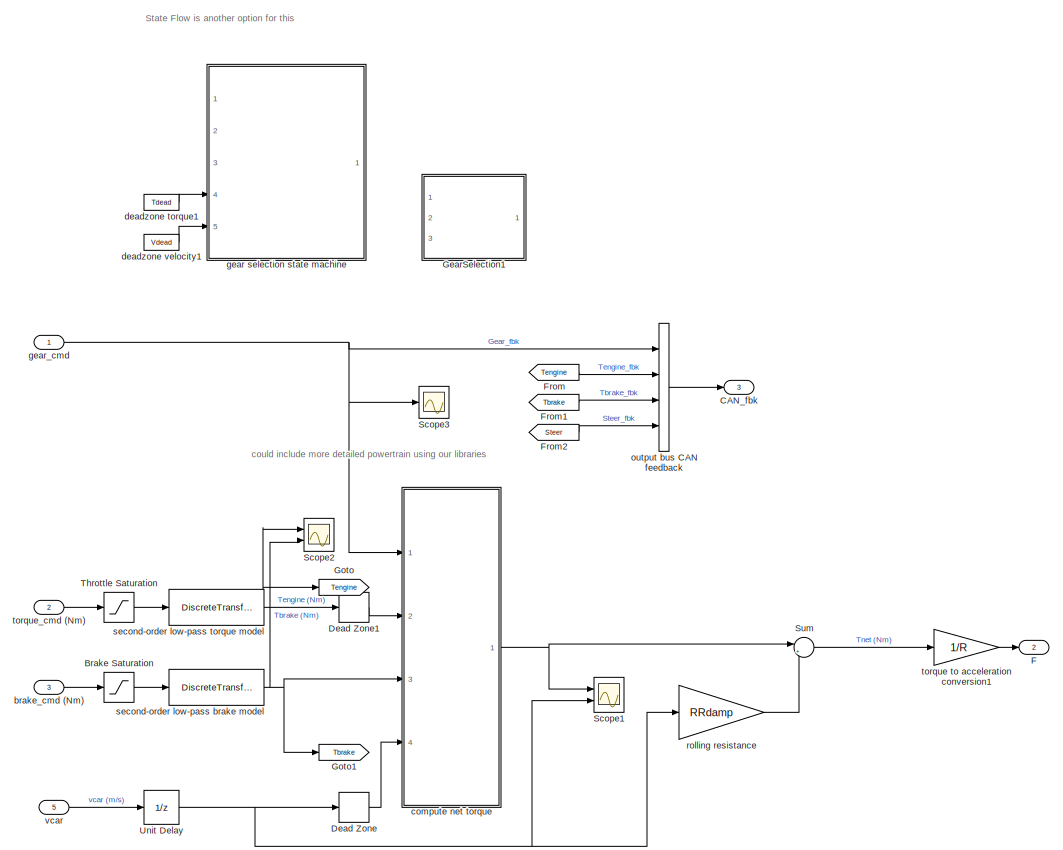
[diagram: Vehicle Dynamics1/VehicleDynamics/engine-steer-brake dynamics - part 1/2, most of the canvas]
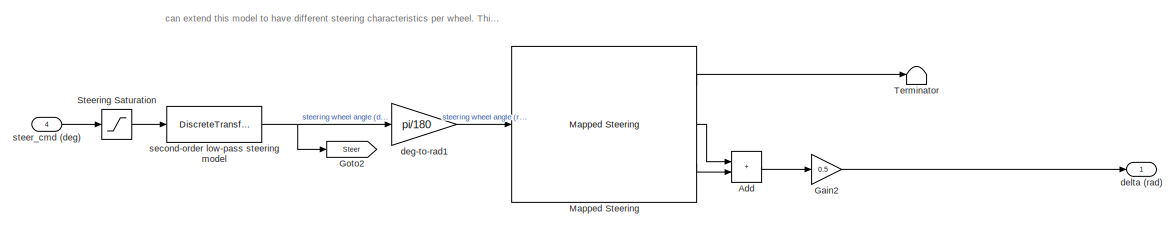
[diagram: Vehicle Dynamics1/VehicleDynamics/engine-steer-brake dynamics - part 2/2, full width, bottom band]
BLOCK [SubSystem] Vehicle Dynamics1/VehicleDynamics/engine-steer-brake dynamics
  Ports = [5, 3]
  RequestExecContextInheritance = off
BLOCK [Sum] Vehicle Dynamics1/VehicleDynamics/engine-steer-brake dynamics/Add
  IconShape = rectangular
  Ports = [2, 1]
BLOCK [Saturate] Vehicle Dynamics1/VehicleDynamics/engine-steer-brake dynamics/Brake Saturation
  LowerLimit = MIN_BRAKE
  UpperLimit = MAX_BRAKE
BLOCK [Outport] Vehicle Dynamics1/VehicleDynamics/engine-steer-brake dynamics/CAN_fbk
  Port = 3
  VectorParamsAs1DForOutWhenUnconnected = off
BLOCK [DeadZone] Vehicle Dynamics1/VehicleDynamics/engine-steer-brake dynamics/Dead Zone
  LowerValue = -Vdead
  UpperValue = Vdead
BLOCK [DeadZone] Vehicle Dynamics1/VehicleDynamics/engine-steer-brake dynamics/Dead Zone1
  LowerValue = -Tdead
  UpperValue = Tdead
BLOCK [Outport] Vehicle Dynamics1/VehicleDynamics/engine-steer-brake dynamics/F
  Port = 2
  VectorParamsAs1DForOutWhenUnconnected = off
BLOCK [From] Vehicle Dynamics1/VehicleDynamics/engine-steer-brake dynamics/From
  GotoTag = Tengine
BLOCK [From] Vehicle Dynamics1/VehicleDynamics/engine-steer-brake dynamics/From1
  GotoTag = Tbrake
BLOCK [From] Vehicle Dynamics1/VehicleDynamics/engine-steer-brake dynamics/From2
  GotoTag = Steer
BLOCK [Gain] Vehicle Dynamics1/VehicleDynamics/engine-steer-brake dynamics/Gain2
  Gain = 0.5
BLOCK [SubSystem] Vehicle Dynamics1/VehicleDynamics/engine-steer-brake dynamics/GearSelection1
  Commented = on
  ErrorFcn = Stateflow.Translate.translate
  PermitHierarchicalResolution = ExplicitOnly
  PortSchema = {"entries":[{"content":{"sides":[{"content":{"connectorIds":["In3","In2","In1"]},"type":"ConnectorPlacement.EquallySpacedRectSide","uuid":"465e5722-891f-481b-b3b6-2b8339e8e743"},{"content":{"connectorIds":["Out1"],"side":"RIGHT"},"type":"ConnectorPlacement.EquallySpacedRectSide","uuid":"28ef13cd-41d9-4e2e-8cd9-9157abf573a9"},{"content":{"connectorIds":[],"side":"TOP"},"type":"ConnectorPlacement.Eq...<+396ch>
  Ports = [3, 1]
  RequestExecContextInheritance = off
  SFBlockType = Chart
  SystemSampleTime = ts
  TreatAsAtomicUnit = on
BLOCK [Demux] Vehicle Dynamics1/VehicleDynamics/engine-steer-brake dynamics/GearSelection1/ Demux 
  Outputs = 1
  Ports = [1, 1]
BLOCK [S-Function] Vehicle Dynamics1/VehicleDynamics/engine-steer-brake dynamics/GearSelection1/ SFunction 
  EnableBusSupport = on
  FunctionName = sf_sfun
  Parameters = DefaultGear,Tdead,Vdead
  PortCounts = [3 2]
  Ports = [3, 2]
  SFcnIsStateOwnerBlock = off
  SFunctionDeploymentMode = off
  Tag = Stateflow S-Function 17
BLOCK [Terminator] Vehicle Dynamics1/VehicleDynamics/engine-steer-brake dynamics/GearSelection1/ Terminator 
BLOCK [Outport] Vehicle Dynamics1/VehicleDynamics/engine-steer-brake dynamics/GearSelection1/CurrGear
BLOCK [Inport] Vehicle Dynamics1/VehicleDynamics/engine-steer-brake dynamics/GearSelection1/Tbrake
BLOCK [Inport] Vehicle Dynamics1/VehicleDynamics/engine-steer-brake dynamics/GearSelection1/gear_cmd
  Port = 3
BLOCK [Inport] Vehicle Dynamics1/VehicleDynamics/engine-steer-brake dynamics/GearSelection1/vc
  Port = 2
BLOCK [Goto] Vehicle Dynamics1/VehicleDynamics/engine-steer-brake dynamics/Goto
  GotoTag = Tengine
BLOCK [Goto] Vehicle Dynamics1/VehicleDynamics/engine-steer-brake dynamics/Goto1
  GotoTag = Tbrake
BLOCK [Goto] Vehicle Dynamics1/VehicleDynamics/engine-steer-brake dynamics/Goto2
  GotoTag = Steer
BLOCK [Reference] Vehicle Dynamics1/VehicleDynamics/engine-steer-brake dynamics/Mapped Steering  REF=vehdynlibsteering/Mapped Steering
  Ports = [1, 3]
  SourceBlock = vehdynlibsteering/Mapped Steering
  SourceProductBaseCode = VE
  SourceType = Mapped Steering
BLOCK [Scope] Vehicle Dynamics1/VehicleDynamics/engine-steer-brake dynamics/Scope1
  Floating = off
  NumInputPorts = 2
  Ports = [2]
  ScopeSpecificationString = Simulink.scopes.TimeScopeBlockCfg('CurrentConfiguration', extmgr.ConfigurationSet(extmgr.Configuration('Core','General UI',true),extmgr.Configuration('Core','Source UI',true),extmgr.Configuration('Sources','WiredSimulink',true,'DataLoggingVariableName','ScopeData3'),extmgr.Configuration('Visuals','Time Domain',true,'SerializedDisplays',{struct('MinYLimReal','-4915.04892','MaxYLimReal','4915.04453'...<+2339ch>
BLOCK [Scope] Vehicle Dynamics1/VehicleDynamics/engine-steer-brake dynamics/Scope2
  Floating = off
  NumInputPorts = 2
  Ports = [2]
  ScopeSpecificationString = Simulink.scopes.TimeScopeBlockCfg('CurrentConfiguration', extmgr.ConfigurationSet(extmgr.Configuration('Core','General UI',true),extmgr.Configuration('Core','Source UI',true),extmgr.Configuration('Sources','WiredSimulink',true,'DataLoggingVariableName','ScopeData2'),extmgr.Configuration('Visuals','Time Domain',true,'SerializedDisplays',{struct('MinYLimReal','-26.90714','MaxYLimReal','242.16425','Y...<+1681ch>
BLOCK [Scope] Vehicle Dynamics1/VehicleDynamics/engine-steer-brake dynamics/Scope3
  Floating = off
  NumInputPorts = 1
  Ports = [1]
  ScopeSpecificationString = Simulink.scopes.TimeScopeBlockCfg('CurrentConfiguration', extmgr.ConfigurationSet(extmgr.Configuration('Core','General UI',true),extmgr.Configuration('Core','Source UI',true),extmgr.Configuration('Sources','WiredSimulink',true,'DataLoggingVariableName','ScopeData3'),extmgr.Configuration('Visuals','Time Domain',true,'SerializedDisplays',{struct('MinYLimReal','0.9','MaxYLimReal','1.1','YLabelReal','...<+1393ch>
BLOCK [Saturate] Vehicle Dynamics1/VehicleDynamics/engine-steer-brake dynamics/Steering Saturation
  LowerLimit = MIN_STEER
  UpperLimit = MAX_STEER
BLOCK [Sum] Vehicle Dynamics1/VehicleDynamics/engine-steer-brake dynamics/Sum
  Inputs = |+-
  Ports = [2, 1]
BLOCK [Terminator] Vehicle Dynamics1/VehicleDynamics/engine-steer-brake dynamics/Terminator
BLOCK [Saturate] Vehicle Dynamics1/VehicleDynamics/engine-steer-brake dynamics/Throttle Saturation
  LowerLimit = MIN_TORQUE
  UpperLimit = MAX_TORQUE
BLOCK [UnitDelay] Vehicle Dynamics1/VehicleDynamics/engine-steer-brake dynamics/Unit Delay
  HasFrameUpgradeWarning = on
  SampleTime = -1
BLOCK [Inport] Vehicle Dynamics1/VehicleDynamics/engine-steer-brake dynamics/brake_cmd (Nm)
  Port = 3
BLOCK [SubSystem] Vehicle Dynamics1/VehicleDynamics/engine-steer-brake dynamics/compute net torque
  ErrorFcn = Stateflow.Translate.translate
  PermitHierarchicalResolution = ExplicitOnly
  Ports = [4, 1]
  RequestExecContextInheritance = off
  SFBlockType = MATLAB Function
  SystemSampleTime = ts
  TreatAsAtomicUnit = on
BLOCK [Demux] Vehicle Dynamics1/VehicleDynamics/engine-steer-brake dynamics/compute net torque/ Demux 
  Outputs = 1
  Ports = [1, 1]
BLOCK [S-Function] Vehicle Dynamics1/VehicleDynamics/engine-steer-brake dynamics/compute net torque/ SFunction 
  EnableBusSupport = on
  FunctionName = sf_sfun
  PortCounts = [4 2]
  Ports = [4, 2]
  SFcnIsStateOwnerBlock = off
  SFunctionDeploymentMode = off
  Tag = Stateflow S-Function 18
BLOCK [Terminator] Vehicle Dynamics1/VehicleDynamics/engine-steer-brake dynamics/compute net torque/ Terminator 
BLOCK [Inport] Vehicle Dynamics1/VehicleDynamics/engine-steer-brake dynamics/compute net torque/Tbrake
  Port = 3
BLOCK [Inport] Vehicle Dynamics1/VehicleDynamics/engine-steer-brake dynamics/compute net torque/Tengine
  Port = 2
BLOCK [Outport] Vehicle Dynamics1/VehicleDynamics/engine-steer-brake dynamics/compute net torque/Tnet
  VectorParamsAs1DForOutWhenUnconnected = off
BLOCK [Inport] Vehicle Dynamics1/VehicleDynamics/engine-steer-brake dynamics/compute net torque/gear
BLOCK [Inport] Vehicle Dynamics1/VehicleDynamics/engine-steer-brake dynamics/compute net torque/vc
  Port = 4
BLOCK [Constant] Vehicle Dynamics1/VehicleDynamics/engine-steer-brake dynamics/deadzone torque1
  Commented = on
  SampleTime = ts
  Value = Tdead
BLOCK [Constant] Vehicle Dynamics1/VehicleDynamics/engine-steer-brake dynamics/deadzone velocity1
  Commented = on
  SampleTime = ts
  Value = Vdead
BLOCK [Gain] Vehicle Dynamics1/VehicleDynamics/engine-steer-brake dynamics/deg-to-rad1
  Gain = pi/180
BLOCK [Outport] Vehicle Dynamics1/VehicleDynamics/engine-steer-brake dynamics/delta (rad)
  VectorParamsAs1DForOutWhenUnconnected = off
BLOCK [SubSystem] Vehicle Dynamics1/VehicleDynamics/engine-steer-brake dynamics/gear selection state machine
  Commented = on
  ErrorFcn = Stateflow.Translate.translate
  PermitHierarchicalResolution = ExplicitOnly
  Ports = [5, 1]
  RequestExecContextInheritance = off
  SFBlockType = MATLAB Function
  SystemSampleTime = ts
  TreatAsAtomicUnit = on
BLOCK [Demux] Vehicle Dynamics1/VehicleDynamics/engine-steer-brake dynamics/gear selection state machine/ Demux 
  Outputs = 1
  Ports = [1, 1]
BLOCK [S-Function] Vehicle Dynamics1/VehicleDynamics/engine-steer-brake dynamics/gear selection state machine/ SFunction 
  EnableBusSupport = on
  FunctionName = sf_sfun
  PortCounts = [5 2]
  Ports = [5, 2]
  SFcnIsStateOwnerBlock = off
  SFunctionDeploymentMode = off
  Tag = Stateflow S-Function 19
BLOCK [Terminator] Vehicle Dynamics1/VehicleDynamics/engine-steer-brake dynamics/gear selection state machine/ Terminator 
BLOCK [Inport] Vehicle Dynamics1/VehicleDynamics/engine-steer-brake dynamics/gear selection state machine/Tbrake
  Port = 3
BLOCK [Inport] Vehicle Dynamics1/VehicleDynamics/engine-steer-brake dynamics/gear selection state machine/Tdead
  Port = 4
BLOCK [Inport] Vehicle Dynamics1/VehicleDynamics/engine-steer-brake dynamics/gear selection state machine/Vdead
  Port = 5
BLOCK [Outport] Vehicle Dynamics1/VehicleDynamics/engine-steer-brake dynamics/gear selection state machine/gear
  VectorParamsAs1DForOutWhenUnconnected = off
BLOCK [Inport] Vehicle Dynamics1/VehicleDynamics/engine-steer-brake dynamics/gear selection state machine/gear_cmd
BLOCK [Inport] Vehicle Dynamics1/VehicleDynamics/engine-steer-brake dynamics/gear selection state machine/vc
  Port = 2
BLOCK [Inport] Vehicle Dynamics1/VehicleDynamics/engine-steer-brake dynamics/gear_cmd
BLOCK [BusCreator] Vehicle Dynamics1/VehicleDynamics/engine-steer-brake dynamics/output bus CAN feedback
  DisplayOption = bar
  InheritFromInputs = on
  Inputs = 4
  Ports = [4, 1]
BLOCK [Gain] Vehicle Dynamics1/VehicleDynamics/engine-steer-brake dynamics/rolling resistance
  Gain = RRdamp
BLOCK [DiscreteTransferFcn] Vehicle Dynamics1/VehicleDynamics/engine-steer-brake dynamics/second-order low-pass brake model
  Denominator = DEND_B
  InputPortMap = u0
  Numerator = NUMD_B
  Ports = [1, 1]
  SampleTime = ts
BLOCK [DiscreteTransferFcn] Vehicle Dynamics1/VehicleDynamics/engine-steer-brake dynamics/second-order low-pass steering model
  Denominator = DEND_S
  InputPortMap = u0
  Numerator = NUMD_S
  Ports = [1, 1]
  SampleTime = ts
BLOCK [DiscreteTransferFcn] Vehicle Dynamics1/VehicleDynamics/engine-steer-brake dynamics/second-order low-pass torque model
  Denominator = DEND_T
  InputPortMap = u0
  Numerator = NUMD_T
  Ports = [1, 1]
  SampleTime = ts
BLOCK [Inport] Vehicle Dynamics1/VehicleDynamics/engine-steer-brake dynamics/steer_cmd (deg)
  Port = 4
BLOCK [Gain] Vehicle Dynamics1/VehicleDynamics/engine-steer-brake dynamics/torque to acceleration conversion1
  Gain = 1/R
BLOCK [Inport] Vehicle Dynamics1/VehicleDynamics/engine-steer-brake dynamics/torque_cmd (Nm)
  Port = 2
BLOCK [Inport] Vehicle Dynamics1/VehicleDynamics/engine-steer-brake dynamics/vcar
  Port = 5
BLOCK [BusSelector] Vehicle Dynamics1/VehicleDynamics/input bus to car
  OutputSignals = gear_cmd,torque_cmd (Nm),brake_cmd (Nm),steer_cmd (deg)
  Ports = [1, 4]
BLOCK [Outport] Vehicle Dynamics1/VehicleDynamics/xdot
  Port = 3
BLOCK [Inport] Vehicle Dynamics1/brake_cm
  Port = 2
BLOCK [Inport] Vehicle Dynamics1/steer_cm
  Port = 3
BLOCK [Inport] Vehicle Dynamics1/torque_cm
BLOCK [Outport] Vehicle Dynamics1/xdot
  Port = 3
BLOCK [SubSystem] Visual Results
  Ports = [2, 1]
  RequestExecContextInheritance = off
BLOCK [Inport] Visual Results/Actors
BLOCK [BusSelector] Visual Results/Bus Selector
  OutputSignals = Actors
  Ports = [1, 1]
BLOCK [Inport] Visual Results/EgoInfo
  Port = 2
BLOCK [SubSystem] Visual Results/Lights and Signs ID
  Ports = [0, 2]
  RequestExecContextInheritance = off
BLOCK [Constant] Visual Results/Lights and Signs ID/Constant
  Value = TL_ID
BLOCK [Constant] Visual Results/Lights and Signs ID/Constant1
  Value = stopSign_ID
BLOCK [Outport] Visual Results/Lights and Signs ID/Stop_Sign
  Port = 2
BLOCK [Outport] Visual Results/Lights and Signs ID/TL
BLOCK [SubSystem] Visual Results/Positions and States 
  Ports = [3, 2]
  RequestExecContextInheritance = off
BLOCK [Inport] Visual Results/Positions and States /<Actors>
BLOCK [SubSystem] Visual Results/Positions and States /MATLAB Function1
  ErrorFcn = Stateflow.Translate.translate
  PermitHierarchicalResolution = ExplicitOnly
  Ports = [2, 1]
  RequestExecContextInheritance = off
  SFBlockType = MATLAB Function
  TreatAsAtomicUnit = on
BLOCK [Demux] Visual Results/Positions and States /MATLAB Function1/ Demux 
  Outputs = 1
  Ports = [1, 1]
BLOCK [S-Function] Visual Results/Positions and States /MATLAB Function1/ SFunction 
  EnableBusSupport = on
  FunctionName = sf_sfun
  PortCounts = [2 2]
  Ports = [2, 2]
  SFcnIsStateOwnerBlock = off
  SFunctionDeploymentMode = off
  Tag = Stateflow S-Function 2
BLOCK [Terminator] Visual Results/Positions and States /MATLAB Function1/ Terminator 
BLOCK [Inport] Visual Results/Positions and States /MATLAB Function1/Actors
BLOCK [Inport] Visual Results/Positions and States /MATLAB Function1/TL_State
  Port = 2
BLOCK [Outport] Visual Results/Positions and States /MATLAB Function1/TL_poses
BLOCK [SubSystem] Visual Results/Positions and States /MATLAB Function2
  ErrorFcn = Stateflow.Translate.translate
  PermitHierarchicalResolution = ExplicitOnly
  Ports = [2, 1]
  RequestExecContextInheritance = off
  SFBlockType = MATLAB Function
  TreatAsAtomicUnit = on
BLOCK [Demux] Visual Results/Positions and States /MATLAB Function2/ Demux 
  Outputs = 1
  Ports = [1, 1]
BLOCK [S-Function] Visual Results/Positions and States /MATLAB Function2/ SFunction 
  EnableBusSupport = on
  FunctionName = sf_sfun
  PortCounts = [2 2]
  Ports = [2, 2]
  SFcnIsStateOwnerBlock = off
  SFunctionDeploymentMode = off
  Tag = Stateflow S-Function 1
BLOCK [Terminator] Visual Results/Positions and States /MATLAB Function2/ Terminator 
BLOCK [Inport] Visual Results/Positions and States /MATLAB Function2/Actors
BLOCK [Inport] Visual Results/Positions and States /MATLAB Function2/ss_State
  Port = 2
BLOCK [Outport] Visual Results/Positions and States /MATLAB Function2/ss_poses
BLOCK [Inport] Visual Results/Positions and States /TL_id
  Port = 2
BLOCK [Outport] Visual Results/Positions and States /TL_poses
BLOCK [SubSystem] Visual Results/Positions and States /Traffic Light Sensor
  Ports = [1, 1]
  RequestExecContextInheritance = off
BLOCK [BusCreator] Visual Results/Positions and States /Traffic Light Sensor/Bus Creator
  DisplayOption = bar
  InheritFromInputs = on
  Inputs = 2
  Ports = [2, 1]
BLOCK [Constant] Visual Results/Positions and States /Traffic Light Sensor/LightConfiguration
  Value = TrafficLightSensorModeSelection
BLOCK [Outport] Visual Results/Positions and States /Traffic Light Sensor/TL_State
BLOCK [Inport] Visual Results/Positions and States /Traffic Light Sensor/TL_id
BLOCK [SubSystem] Visual Results/Positions and States /Traffic Light Sensor/Traffic Light Switching Logic
  ErrorFcn = Stateflow.Translate.translate
  PermitHierarchicalResolution = ExplicitOnly
  Ports = [2, 2]
  RequestExecContextInheritance = off
  SFBlockType = Chart
  TreatAsAtomicUnit = on
BLOCK [Demux] Visual Results/Positions and States /Traffic Light Sensor/Traffic Light Switching Logic/ Demux 
  Outputs = 1
  Ports = [1, 1]
BLOCK [S-Function] Visual Results/Positions and States /Traffic Light Sensor/Traffic Light Switching Logic/ SFunction 
  EnableBusSupport = on
  FunctionName = sf_sfun
  PortCounts = [2 3]
  Ports = [2, 3]
  SFcnIsStateOwnerBlock = off
  SFunctionDeploymentMode = off
  Tag = Stateflow S-Function 3
BLOCK [Terminator] Visual Results/Positions and States /Traffic Light Sensor/Traffic Light Switching Logic/ Terminator 
BLOCK [Inport] Visual Results/Positions and States /Traffic Light Sensor/Traffic Light Switching Logic/LightConfig
BLOCK [Outport] Visual Results/Positions and States /Traffic Light Sensor/Traffic Light Switching Logic/TL_ID
BLOCK [Inport] Visual Results/Positions and States /Traffic Light Sensor/Traffic Light Switching Logic/TL_id
  Port = 2
BLOCK [Outport] Visual Results/Positions and States /Traffic Light Sensor/Traffic Light Switching Logic/trafficLight
  Port = 2
BLOCK [Inport] Visual Results/Positions and States /ss_State
  Port = 3
BLOCK [Outport] Visual Results/Positions and States /ss_poses
  Port = 2
BLOCK [Outport] Visual Results/TL_poses
BLOCK [SubSystem] Visual Results/Visualization
  Ports = [4]
  RequestExecContextInheritance = off
BLOCK [Inport] Visual Results/Visualization/Actors
  Port = 2
BLOCK [Inport] Visual Results/Visualization/EgoInfo
  Port = 3
BLOCK [Inport] Visual Results/Visualization/TL1_poses
BLOCK [MATLABSystem] Visual Results/Visualization/Visualization
  MaskDisplay = disp('TL_vis');\nport_label('input',1,'TL');\nport_label('input',2,'TargetPoses');\nport_label('input',3,'EgoInfo');\nport_label('input',4,'SS');
  MaskType = TL_vis
  Ports = [4]
  System = TL_vis
BLOCK [Inport] Visual Results/Visualization/ss1_poses
  Port = 4
ANNOTATION Reference Data: Select method to calculate theta
ANNOTATION Reference Data/Theta: 1) Add Subsystem or Model blocks as valid variant choices. 2) You cannot connect blocks at this level. At simulation, connectivity is automatically determined, based on the active variant and port name matching.
ANNOTATION Reference Data/Theta/thetaBlocks: theta calculated from Simulink blocks
ANNOTATION Reference Data/Theta/thetaLt: Check out the script "setUpModel" to understand how we have calculated theta
ANNOTATION Reference Data/Theta/thetaLt: theta based on lookup table
ANNOTATION Vehicle Dynamics1: Commands from Signal Builder
ANNOTATION Vehicle Dynamics1: Commands from workspace
ANNOTATION Vehicle Dynamics1: Constant Commands
ANNOTATION Vehicle Dynamics1: Controller Commands
ANNOTATION Vehicle Dynamics1: The vehicle commands are selected from workspace variables set up in 'car params.m' for a lane change scenario
ANNOTATION Vehicle Dynamics1/VehicleDynamics: can switch to dual track model for resolving forces at each wheel
ANNOTATION Vehicle Dynamics1/VehicleDynamics: set a larger cornering stiffness than base. If smaller, the effect on turning can be seen
ANNOTATION Vehicle Dynamics1/VehicleDynamics/engine-steer-brake dynamics: State Flow is another option for this
ANNOTATION Vehicle Dynamics1/VehicleDynamics/engine-steer-brake dynamics: can extend this model to have different steering characteristics per wheel. This can be used in the dual track vehicle model.
ANNOTATION Vehicle Dynamics1/VehicleDynamics/engine-steer-brake dynamics: could include more detailed powertrain using our libraries
ANNOTATION Visual Results: Traffic Lights and Stop Signs
ANNOTATION Visual Results/Positions and States : Stop Sign positon
ANNOTATION Visual Results/Positions and States : Traffic Light Position and State
ANNOTATION Visual Results/Positions and States /Traffic Light Sensor: Traffic Light Sensor
ANNOTATION Visual Results/Visualization: Visualization
LINE Clock:1 -> To Workspace3:1
LINE Controllers/Accel2Torques Conversion/ACCaccel_cmd:1 -> Controllers/Accel2Torques Conversion/Subsystem2:1
LINE Controllers/Accel2Torques Conversion/LCaccel_cmd:1 -> Controllers/Accel2Torques Conversion/Subsystem1:1
LINE Controllers/Accel2Torques Conversion/LCdeccel_cmd:1 -> Controllers/Accel2Torques Conversion/Subsystem1:2
LINE Controllers/Accel2Torques Conversion/Merge1:1 -> Controllers/Accel2Torques Conversion/TorgueCm:1
LINE Controllers/Accel2Torques Conversion/Merge2:1 -> Controllers/Accel2Torques Conversion/BrakeCm:1
LINE Controllers/Accel2Torques Conversion/Select:1 -> Controllers/Accel2Torques Conversion/Switch Case1:1
NET Controllers/Accel2Torques Conversion/Subsystem1/Brake Saturation:1 -> Controllers/Accel2Torques Conversion/Subsystem1/Switch1:2, Controllers/Accel2Torques Conversion/Subsystem1/Switch1:3
NET Controllers/Accel2Torques Conversion/Subsystem1/Constant:1 -> Controllers/Accel2Torques Conversion/Subsystem1/Switch1:1, Controllers/Accel2Torques Conversion/Subsystem1/Switch:3
LINE Controllers/Accel2Torques Conversion/Subsystem1/Subsystem2/Subsystem/Constant1:1 -> Controllers/Accel2Torques Conversion/Subsystem1/Subsystem2/Subsystem/Gain2:1
LINE Controllers/Accel2Torques Conversion/Subsystem1/Subsystem2/Subsystem/Gain1:1 -> Controllers/Accel2Torques Conversion/Subsystem1/Subsystem2/Subsystem/Sum:1
LINE Controllers/Accel2Torques Conversion/Subsystem1/Subsystem2/Subsystem/Gain2:1 -> Controllers/Accel2Torques Conversion/Subsystem1/Subsystem2/Subsystem/Sum:2
LINE Controllers/Accel2Torques Conversion/Subsystem1/Subsystem2/Subsystem/Gain4:1 -> Controllers/Accel2Torques Conversion/Subsystem1/Subsystem2/Subsystem/T_eng_cmd:1
LINE Controllers/Accel2Torques Conversion/Subsystem1/Subsystem2/Subsystem/Gain:1 -> Controllers/Accel2Torques Conversion/Subsystem1/Subsystem2/Subsystem/Sum:3
LINE Controllers/Accel2Torques Conversion/Subsystem1/Subsystem2/Subsystem/Integrator:1 -> Controllers/Accel2Torques Conversion/Subsystem1/Subsystem2/Subsystem/Square:1
LINE Controllers/Accel2Torques Conversion/Subsystem1/Subsystem2/Subsystem/Square:1 -> Controllers/Accel2Torques Conversion/Subsystem1/Subsystem2/Subsystem/Gain1:1
LINE Controllers/Accel2Torques Conversion/Subsystem1/Subsystem2/Subsystem/Sum:1 -> Controllers/Accel2Torques Conversion/Subsystem1/Subsystem2/Subsystem/Gain4:1
NET Controllers/Accel2Torques Conversion/Subsystem1/Subsystem2/Subsystem/acc_cmd:1 -> Controllers/Accel2Torques Conversion/Subsystem1/Subsystem2/Subsystem/Gain:1, Controllers/Accel2Torques Conversion/Subsystem1/Subsystem2/Subsystem/Integrator:1, Controllers/Accel2Torques Conversion/Subsystem1/Subsystem2/Subsystem/Integrator:2
LINE Controllers/Accel2Torques Conversion/Subsystem1/Subsystem2/Subsystem1/Constant1:1 -> Controllers/Accel2Torques Conversion/Subsystem1/Subsystem2/Subsystem1/Gain2:1
LINE Controllers/Accel2Torques Conversion/Subsystem1/Subsystem2/Subsystem1/Gain1:1 -> Controllers/Accel2Torques Conversion/Subsystem1/Subsystem2/Subsystem1/Sum:1
LINE Controllers/Accel2Torques Conversion/Subsystem1/Subsystem2/Subsystem1/Gain2:1 -> Controllers/Accel2Torques Conversion/Subsystem1/Subsystem2/Subsystem1/Sum:2
LINE Controllers/Accel2Torques Conversion/Subsystem1/Subsystem2/Subsystem1/Gain4:1 -> Controllers/Accel2Torques Conversion/Subsystem1/Subsystem2/Subsystem1/T_brake_cmd:1
LINE Controllers/Accel2Torques Conversion/Subsystem1/Subsystem2/Subsystem1/Gain:1 -> Controllers/Accel2Torques Conversion/Subsystem1/Subsystem2/Subsystem1/Sum:3
LINE Controllers/Accel2Torques Conversion/Subsystem1/Subsystem2/Subsystem1/Integrator:1 -> Controllers/Accel2Torques Conversion/Subsystem1/Subsystem2/Subsystem1/Square:1
LINE Controllers/Accel2Torques Conversion/Subsystem1/Subsystem2/Subsystem1/Square:1 -> Controllers/Accel2Torques Conversion/Subsystem1/Subsystem2/Subsystem1/Gain1:1
LINE Controllers/Accel2Torques Conversion/Subsystem1/Subsystem2/Subsystem1/Sum:1 -> Controllers/Accel2Torques Conversion/Subsystem1/Subsystem2/Subsystem1/Gain4:1
NET Controllers/Accel2Torques Conversion/Subsystem1/Subsystem2/Subsystem1/decc_cmd:1 -> Controllers/Accel2Torques Conversion/Subsystem1/Subsystem2/Subsystem1/Gain:1, Controllers/Accel2Torques Conversion/Subsystem1/Subsystem2/Subsystem1/Integrator:1, Controllers/Accel2Torques Conversion/Subsystem1/Subsystem2/Subsystem1/Integrator:2
LINE Controllers/Accel2Torques Conversion/Subsystem1/Subsystem2/Subsystem1:1 -> Controllers/Accel2Torques Conversion/Subsystem1/Subsystem2/brake_cmd:1
LINE Controllers/Accel2Torques Conversion/Subsystem1/Subsystem2/Subsystem:1 -> Controllers/Accel2Torques Conversion/Subsystem1/Subsystem2/T_eng_cmd:1
LINE Controllers/Accel2Torques Conversion/Subsystem1/Subsystem2/acc_cmd:1 -> Controllers/Accel2Torques Conversion/Subsystem1/Subsystem2/Subsystem:1
LINE Controllers/Accel2Torques Conversion/Subsystem1/Subsystem2/decc_cmd:1 -> Controllers/Accel2Torques Conversion/Subsystem1/Subsystem2/Subsystem1:1
LINE Controllers/Accel2Torques Conversion/Subsystem1/Subsystem2:1 -> Controllers/Accel2Torques Conversion/Subsystem1/second-order low-pass torque model:1
LINE Controllers/Accel2Torques Conversion/Subsystem1/Subsystem2:2 -> Controllers/Accel2Torques Conversion/Subsystem1/second-order low-pass brake model1:1
LINE Controllers/Accel2Torques Conversion/Subsystem1/Switch1:1 -> Controllers/Accel2Torques Conversion/Subsystem1/brake_cm:1
LINE Controllers/Accel2Torques Conversion/Subsystem1/Switch:1 -> Controllers/Accel2Torques Conversion/Subsystem1/torque_cm:1
NET Controllers/Accel2Torques Conversion/Subsystem1/Throttle Saturation:1 -> Controllers/Accel2Torques Conversion/Subsystem1/Switch:1, Controllers/Accel2Torques Conversion/Subsystem1/Switch:2
LINE Controllers/Accel2Torques Conversion/Subsystem1/acc_cmd:1 -> Controllers/Accel2Torques Conversion/Subsystem1/Subsystem2:1
LINE Controllers/Accel2Torques Conversion/Subsystem1/decc_cmd:1 -> Controllers/Accel2Torques Conversion/Subsystem1/Subsystem2:2
LINE Controllers/Accel2Torques Conversion/Subsystem1/second-order low-pass brake model1:1 -> Controllers/Accel2Torques Conversion/Subsystem1/Brake Saturation:1
LINE Controllers/Accel2Torques Conversion/Subsystem1/second-order low-pass torque model:1 -> Controllers/Accel2Torques Conversion/Subsystem1/Throttle Saturation:1
LINE Controllers/Accel2Torques Conversion/Subsystem1:1 -> Controllers/Accel2Torques Conversion/Merge1:2
LINE Controllers/Accel2Torques Conversion/Subsystem1:2 -> Controllers/Accel2Torques Conversion/Merge2:2
NET Controllers/Accel2Torques Conversion/Subsystem2/Brake Saturation:1 -> Controllers/Accel2Torques Conversion/Subsystem2/Switch1:2, Controllers/Accel2Torques Conversion/Subsystem2/Switch1:3
NET Controllers/Accel2Torques Conversion/Subsystem2/Constant:1 -> Controllers/Accel2Torques Conversion/Subsystem2/Switch1:1, Controllers/Accel2Torques Conversion/Subsystem2/Switch:3
LINE Controllers/Accel2Torques Conversion/Subsystem2/Gain1:1 -> Controllers/Accel2Torques Conversion/Subsystem2/second-order low-pass brake model1:1
LINE Controllers/Accel2Torques Conversion/Subsystem2/Gain:1 -> Controllers/Accel2Torques Conversion/Subsystem2/second-order low-pass torque model:1
LINE Controllers/Accel2Torques Conversion/Subsystem2/MATLAB Function:1 -> Controllers/Accel2Torques Conversion/Subsystem2/Subsystem2:1
LINE Controllers/Accel2Torques Conversion/Subsystem2/MATLAB Function:2 -> Controllers/Accel2Torques Conversion/Subsystem2/Subsystem2:2
LINE Controllers/Accel2Torques Conversion/Subsystem2/Subsystem2/Subsystem/Constant1:1 -> Controllers/Accel2Torques Conversion/Subsystem2/Subsystem2/Subsystem/Gain2:1
LINE Controllers/Accel2Torques Conversion/Subsystem2/Subsystem2/Subsystem/Gain1:1 -> Controllers/Accel2Torques Conversion/Subsystem2/Subsystem2/Subsystem/Sum:1
LINE Controllers/Accel2Torques Conversion/Subsystem2/Subsystem2/Subsystem/Gain2:1 -> Controllers/Accel2Torques Conversion/Subsystem2/Subsystem2/Subsystem/Sum:2
LINE Controllers/Accel2Torques Conversion/Subsystem2/Subsystem2/Subsystem/Gain4:1 -> Controllers/Accel2Torques Conversion/Subsystem2/Subsystem2/Subsystem/T_eng_cmd:1
LINE Controllers/Accel2Torques Conversion/Subsystem2/Subsystem2/Subsystem/Gain:1 -> Controllers/Accel2Torques Conversion/Subsystem2/Subsystem2/Subsystem/Sum:3
LINE Controllers/Accel2Torques Conversion/Subsystem2/Subsystem2/Subsystem/Integrator:1 -> Controllers/Accel2Torques Conversion/Subsystem2/Subsystem2/Subsystem/Square:1
LINE Controllers/Accel2Torques Conversion/Subsystem2/Subsystem2/Subsystem/Square:1 -> Controllers/Accel2Torques Conversion/Subsystem2/Subsystem2/Subsystem/Gain1:1
LINE Controllers/Accel2Torques Conversion/Subsystem2/Subsystem2/Subsystem/Sum:1 -> Controllers/Accel2Torques Conversion/Subsystem2/Subsystem2/Subsystem/Gain4:1
NET Controllers/Accel2Torques Conversion/Subsystem2/Subsystem2/Subsystem/acc_cmd:1 -> Controllers/Accel2Torques Conversion/Subsystem2/Subsystem2/Subsystem/Gain:1, Controllers/Accel2Torques Conversion/Subsystem2/Subsystem2/Subsystem/Integrator:1, Controllers/Accel2Torques Conversion/Subsystem2/Subsystem2/Subsystem/Integrator:2
LINE Controllers/Accel2Torques Conversion/Subsystem2/Subsystem2/Subsystem1/Constant1:1 -> Controllers/Accel2Torques Conversion/Subsystem2/Subsystem2/Subsystem1/Gain2:1
LINE Controllers/Accel2Torques Conversion/Subsystem2/Subsystem2/Subsystem1/Gain1:1 -> Controllers/Accel2Torques Conversion/Subsystem2/Subsystem2/Subsystem1/Sum:1
LINE Controllers/Accel2Torques Conversion/Subsystem2/Subsystem2/Subsystem1/Gain2:1 -> Controllers/Accel2Torques Conversion/Subsystem2/Subsystem2/Subsystem1/Sum:2
LINE Controllers/Accel2Torques Conversion/Subsystem2/Subsystem2/Subsystem1/Gain4:1 -> Controllers/Accel2Torques Conversion/Subsystem2/Subsystem2/Subsystem1/T_brake_cmd:1
LINE Controllers/Accel2Torques Conversion/Subsystem2/Subsystem2/Subsystem1/Gain:1 -> Controllers/Accel2Torques Conversion/Subsystem2/Subsystem2/Subsystem1/Sum:3
LINE Controllers/Accel2Torques Conversion/Subsystem2/Subsystem2/Subsystem1/Integrator:1 -> Controllers/Accel2Torques Conversion/Subsystem2/Subsystem2/Subsystem1/Square:1
LINE Controllers/Accel2Torques Conversion/Subsystem2/Subsystem2/Subsystem1/Square:1 -> Controllers/Accel2Torques Conversion/Subsystem2/Subsystem2/Subsystem1/Gain1:1
LINE Controllers/Accel2Torques Conversion/Subsystem2/Subsystem2/Subsystem1/Sum:1 -> Controllers/Accel2Torques Conversion/Subsystem2/Subsystem2/Subsystem1/Gain4:1
NET Controllers/Accel2Torques Conversion/Subsystem2/Subsystem2/Subsystem1/decc_cmd:1 -> Controllers/Accel2Torques Conversion/Subsystem2/Subsystem2/Subsystem1/Gain:1, Controllers/Accel2Torques Conversion/Subsystem2/Subsystem2/Subsystem1/Integrator:1, Controllers/Accel2Torques Conversion/Subsystem2/Subsystem2/Subsystem1/Integrator:2
LINE Controllers/Accel2Torques Conversion/Subsystem2/Subsystem2/Subsystem1:1 -> Controllers/Accel2Torques Conversion/Subsystem2/Subsystem2/brake_cmd:1
LINE Controllers/Accel2Torques Conversion/Subsystem2/Subsystem2/Subsystem:1 -> Controllers/Accel2Torques Conversion/Subsystem2/Subsystem2/T_eng_cmd:1
LINE Controllers/Accel2Torques Conversion/Subsystem2/Subsystem2/acc_cmd:1 -> Controllers/Accel2Torques Conversion/Subsystem2/Subsystem2/Subsystem:1
LINE Controllers/Accel2Torques Conversion/Subsystem2/Subsystem2/decc_cmd:1 -> Controllers/Accel2Torques Conversion/Subsystem2/Subsystem2/Subsystem1:1
LINE Controllers/Accel2Torques Conversion/Subsystem2/Subsystem2:1 -> Controllers/Accel2Torques Conversion/Subsystem2/Gain:1
LINE Controllers/Accel2Torques Conversion/Subsystem2/Subsystem2:2 -> Controllers/Accel2Torques Conversion/Subsystem2/Gain1:1
LINE Controllers/Accel2Torques Conversion/Subsystem2/Switch1:1 -> Controllers/Accel2Torques Conversion/Subsystem2/brake_cm:1
LINE Controllers/Accel2Torques Conversion/Subsystem2/Switch:1 -> Controllers/Accel2Torques Conversion/Subsystem2/torque_cm:1
NET Controllers/Accel2Torques Conversion/Subsystem2/Throttle Saturation:1 -> Controllers/Accel2Torques Conversion/Subsystem2/Switch:1, Controllers/Accel2Torques Conversion/Subsystem2/Switch:2
LINE Controllers/Accel2Torques Conversion/Subsystem2/acc_cmd:1 -> Controllers/Accel2Torques Conversion/Subsystem2/MATLAB Function:1
LINE Controllers/Accel2Torques Conversion/Subsystem2/second-order low-pass brake model1:1 -> Controllers/Accel2Torques Conversion/Subsystem2/Brake Saturation:1
LINE Controllers/Accel2Torques Conversion/Subsystem2/second-order low-pass torque model:1 -> Controllers/Accel2Torques Conversion/Subsystem2/Throttle Saturation:1
LINE Controllers/Accel2Torques Conversion/Subsystem2:1 -> Controllers/Accel2Torques Conversion/Merge1:1
LINE Controllers/Accel2Torques Conversion/Subsystem2:2 -> Controllers/Accel2Torques Conversion/Merge2:1
LINE Controllers/Accel2Torques Conversion/Switch Case1:1 -> Controllers/Accel2Torques Conversion/Subsystem2:ifaction
LINE Controllers/Accel2Torques Conversion/Switch Case1:2 -> Controllers/Accel2Torques Conversion/Subsystem1:ifaction
LINE Controllers/Accel2Torques Conversion:1 -> Controllers/TorgueCm:1
LINE Controllers/Accel2Torques Conversion:2 -> Controllers/BrakeCm:1
LINE Controllers/Adaptive Cruise Control System:1 -> Controllers/Accel2Torques Conversion:1
LINE Controllers/Constant3:1 -> Controllers/Longitudinal Controller Stanley:4
LINE Controllers/Constant:1 -> Controllers/Adaptive Cruise Control System:2
LINE Controllers/CurrPoses:1 -> Controllers/Lateral Controller Stanley:2
NET Controllers/CurrVelocity:1 -> Controllers/Lateral Controller Stanley:3, Controllers/Longitudinal Controller Stanley:2
LINE Controllers/Curvature:1 -> Controllers/Speed Adjustment:2
NET Controllers/Direction:1 -> Controllers/Lateral Controller Stanley:4, Controllers/Longitudinal Controller Stanley:3
LINE Controllers/From:1 -> Controllers/Gain1:1
LINE Controllers/Gain:1 -> Controllers/SteerCmd:1
NET Controllers/Lateral Controller Stanley:1 -> Controllers/Gain:1, Controllers/Unit Delay:1
LINE Controllers/Longitudinal Controller Stanley:1 -> Controllers/Accel2Torques Conversion:2
LINE Controllers/Longitudinal Controller Stanley:2 -> Controllers/Accel2Torques Conversion:3
LINE Controllers/Longitudinal velocity:1 -> Controllers/Adaptive Cruise Control System:3
LINE Controllers/RefPoses:1 -> Controllers/Lateral Controller Stanley:1
LINE Controllers/Relative distance:1 -> Controllers/Adaptive Cruise Control System:4
LINE Controllers/Relative velocity:1 -> Controllers/Adaptive Cruise Control System:5
LINE Controllers/Select:1 -> Controllers/Accel2Torques Conversion:4
NET Controllers/Speed Adjustment:1 -> Controllers/Adaptive Cruise Control System:1, Controllers/Longitudinal Controller Stanley:1
LINE Controllers/vel:1 -> Controllers/Speed Adjustment:1
LINE Controllers:1 -> Vehicle Dynamics1:1
LINE Controllers:2 -> Vehicle Dynamics1:2
LINE Controllers:3 -> Vehicle Dynamics1:3
LINE Decision Making Chart/Approaching Speed:1 -> Decision Making Chart/Operation:3
LINE Decision Making Chart/Clear2Go:1 -> Decision Making Chart/Operation:11
NET Decision Making Chart/Collision Avoidance:1 -> Decision Making Chart/ACC:1, Decision Making Chart/Display4:1
LINE Decision Making Chart/Collision Avoidance:2 -> Decision Making Chart/Display9:1
LINE Decision Making Chart/D2D:1 -> Decision Making Chart/Operation:10
LINE Decision Making Chart/D2O:1 -> Decision Making Chart/Emergency Stop:1
LINE Decision Making Chart/D2S:1 -> Decision Making Chart/Operation:7
LINE Decision Making Chart/EgoSpeed:1 -> Decision Making Chart/Collision Avoidance:5
LINE Decision Making Chart/Emergency Stop:1 -> Decision Making Chart/Display7:1
LINE Decision Making Chart/LaneAvailable:1 -> Decision Making Chart/Collision Avoidance:4
LINE Decision Making Chart/LaneChanged:1 -> Decision Making Chart/Collision Avoidance:6
LINE Decision Making Chart/MinSpeed:1 -> Decision Making Chart/Collision Avoidance:3
LINE Decision Making Chart/Navigating Flag:1 -> Decision Making Chart/Operation:9
LINE Decision Making Chart/ObjAhead:1 -> Decision Making Chart/Collision Avoidance:2
LINE Decision Making Chart/Operation:1 -> Decision Making Chart/VelCmd:1
LINE Decision Making Chart/RR Crossing:1 -> Decision Making Chart/Operation:6
LINE Decision Making Chart/ReRoute:1 -> Decision Making Chart/Routing:1
LINE Decision Making Chart/RoadSpeed:1 -> Decision Making Chart/Operation:12
LINE Decision Making Chart/Routing:1 -> Decision Making Chart/Display8:1
LINE Decision Making Chart/SDir:1 -> Decision Making Chart/Operation:2
LINE Decision Making Chart/SDist:1 -> Decision Making Chart/Operation:5
LINE Decision Making Chart/Scene Speed:1 -> Decision Making Chart/Operation:4
LINE Decision Making Chart/Scene:1 -> Decision Making Chart/Operation:8
LINE Decision Making Chart/TLstate:1 -> Decision Making Chart/Operation:1
LINE Decision Making Chart/TechFailure:1 -> Decision Making Chart/Emergency Stop:2
LINE Decision Making Chart/WaitTime:1 -> Decision Making Chart/Collision Avoidance:1
LINE Decision Making Chart:1 -> Controllers:2
LINE Decision Making Chart:2 -> Controllers:5
LINE Reference Data/Curvature:1 -> Reference Data/CurvatureO:1
LINE Reference Data/Direction:1 -> Reference Data/DirectionO:1
NET Reference Data/Integrator:1 -> Reference Data/Curvature:1, Reference Data/Direction:1, Reference Data/Theta:3, Reference Data/X Ref:1, Reference Data/Y Ref:1
LINE Reference Data/Mux:1 -> Reference Data/RefPose:1
LINE Reference Data/Theta/thetaBlocks/Atan2:1 -> Reference Data/Theta/thetaBlocks/IC:1
LINE Reference Data/Theta/thetaBlocks/Difference1:1 -> Reference Data/Theta/thetaBlocks/Atan2:2
LINE Reference Data/Theta/thetaBlocks/Difference:1 -> Reference Data/Theta/thetaBlocks/Atan2:1
LINE Reference Data/Theta/thetaBlocks/IC:1 -> Reference Data/Theta/thetaBlocks/Radians to Degrees:1
LINE Reference Data/Theta/thetaBlocks/Radians to Degrees:1 -> Reference Data/Theta/thetaBlocks/theta:1
LINE Reference Data/Theta/thetaBlocks/dis:1 -> Reference Data/Theta/thetaBlocks/Terminator:1
LINE Reference Data/Theta/thetaBlocks/x:1 -> Reference Data/Theta/thetaBlocks/Difference1:1
LINE Reference Data/Theta/thetaBlocks/y:1 -> Reference Data/Theta/thetaBlocks/Difference:1
LINE Reference Data/Theta/thetaLt/Theta Ref:1 -> Reference Data/Theta/thetaLt/theta:1
LINE Reference Data/Theta/thetaLt/dis:1 -> Reference Data/Theta/thetaLt/Theta Ref:1
LINE Reference Data/Theta/thetaLt/x:1 -> Reference Data/Theta/thetaLt/Terminator1:1
LINE Reference Data/Theta/thetaLt/y:1 -> Reference Data/Theta/thetaLt/Terminator:1
LINE Reference Data/Theta:1 -> Reference Data/Mux:3
LINE Reference Data/VelFdbk:1 -> Reference Data/Integrator:1
NET Reference Data/X Ref:1 -> Reference Data/Goto:1, Reference Data/Mux:1, Reference Data/Theta:2
NET Reference Data/Y Ref:1 -> Reference Data/Goto1:1, Reference Data/Mux:2, Reference Data/Theta:1
LINE Reference Data:1 -> Controllers:7
LINE Reference Data:2 -> Controllers:8
LINE Reference Data:3 -> Controllers:9
NET Scenario Ground Truth/EgoPose:1 -> Scenario Ground Truth/EgoInfo:1, Scenario Ground Truth/Scenario Reader:1, Scenario Ground Truth/To Workspace:1, Scenario Ground Truth/Vehicle To World:2
NET Scenario Ground Truth/Scenario Reader:1 -> Scenario Ground Truth/Actors:1, Scenario Ground Truth/Vehicle To World:1
LINE Scenario Ground Truth/Vehicle To World:1 -> Scenario Ground Truth/ActorsWorld:1
LINE Scenario Ground Truth:1 -> Subsystem1:1
LINE Scenario Ground Truth:2 -> Visual Results:1
NET Scenario Ground Truth:3 -> Subsystem1:2, Visual Results:2
LINE Subsystem/Bus Selector1:1 -> Subsystem/Mux1:1
LINE Subsystem/Bus Selector1:2 -> Subsystem/Mux1:2
LINE Subsystem/Bus Selector1:3 -> Subsystem/Mux1:3
LINE Subsystem/Bus Selector:1 -> Subsystem/Mux:1
LINE Subsystem/Bus Selector:2 -> Subsystem/Mux:2
LINE Subsystem/Bus Selector:3 -> Subsystem/Gain1:1
LINE Subsystem/Gain1:1 -> Subsystem/Mux:3
LINE Subsystem/Mux1:1 -> Subsystem/Transpose1:1
LINE Subsystem/Mux:1 -> Subsystem/Transpose:1
LINE Subsystem/Transpose1:1 -> Subsystem/pose1:1
LINE Subsystem/Transpose:1 -> Subsystem/pose:1
NET Subsystem/VehFdbk:1 -> Subsystem/Bus Selector1:1, Subsystem/Bus Selector:1
LINE Subsystem1/Bus Selector2:1 -> Subsystem1/MATLAB Function1:1
LINE Subsystem1/Bus Selector2:2 -> Subsystem1/MATLAB Function1:2
NET Subsystem1/Constant1:1 -> Subsystem1/MATLAB Function1:4, Subsystem1/Out6:1
LINE Subsystem1/Detections:1 -> Subsystem1/Objects Detection:1
LINE Subsystem1/EgoPose:1 -> Subsystem1/Bus Selector2:1
LINE Subsystem1/MATLAB Function1:1 -> Subsystem1/Scene:1
LINE Subsystem1/MATLAB Function1:2 -> Subsystem1/SDir:1
NET Subsystem1/MATLAB Function1:3 -> Subsystem1/D2S:1, Subsystem1/Objects Detection:2
LINE Subsystem1/MATLAB Function1:4 -> Subsystem1/angl:1
LINE Subsystem1/Objects Detection/D2S:1 -> Subsystem1/Objects Detection/MATLAB Function:1
LINE Subsystem1/Objects Detection/Detections:1 -> Subsystem1/Objects Detection/Tracking:1
LINE Subsystem1/Objects Detection/MATLAB Function:1 -> Subsystem1/Objects Detection/Terminator1:1
LINE Subsystem1/Objects Detection/MATLAB Function:2 -> Subsystem1/Objects Detection/Terminator2:1
LINE Subsystem1/Objects Detection/MATLAB Function:3 -> Subsystem1/Objects Detection/ObjRelVel:1
LINE Subsystem1/Objects Detection/MATLAB Function:4 -> Subsystem1/Objects Detection/ObjectDist:1
LINE Subsystem1/Objects Detection/MATLAB Function:5 -> Subsystem1/Objects Detection/ObjAhead:1
LINE Subsystem1/Objects Detection/Tracking/Camera:1 -> Subsystem1/Objects Detection/Tracking/Detection Concatenation:1
LINE Subsystem1/Objects Detection/Tracking/Detection Concatenation:1 -> Subsystem1/Objects Detection/Tracking/Multi-Object Tracker:1
NET Subsystem1/Objects Detection/Tracking/Detections:1 -> Subsystem1/Objects Detection/Tracking/Camera:1, Subsystem1/Objects Detection/Tracking/Radar Detection Generator:1
LINE Subsystem1/Objects Detection/Tracking/Multi-Object Tracker:1 -> Subsystem1/Objects Detection/Tracking/Confirmed_Tracks:1
LINE Subsystem1/Objects Detection/Tracking/Radar Detection Generator:1 -> Subsystem1/Objects Detection/Tracking/Detection Concatenation:2
LINE Subsystem1/Objects Detection/Tracking/Subsystem1/Camera:1 -> Subsystem1/Objects Detection/Tracking/Subsystem1/Camera Detections:1
LINE Subsystem1/Objects Detection/Tracking/Subsystem1/Detection Concatenation:1 -> Subsystem1/Objects Detection/Tracking/Subsystem1/Radar detections:1
NET Subsystem1/Objects Detection/Tracking/Subsystem1/EgoV:1 -> Subsystem1/Objects Detection/Tracking/Subsystem1/Lidar Point Cloud Generator1:2, Subsystem1/Objects Detection/Tracking/Subsystem1/Lidar Point Cloud Generator2:2, Subsystem1/Objects Detection/Tracking/Subsystem1/Lidar Point Cloud Generator:2
NET Subsystem1/Objects Detection/Tracking/Subsystem1/In2:1 -> Subsystem1/Objects Detection/Tracking/Subsystem1/Camera:1, Subsystem1/Objects Detection/Tracking/Subsystem1/Lidar Point Cloud Generator1:1, Subsystem1/Objects Detection/Tracking/Subsystem1/Lidar Point Cloud Generator2:1, Subsystem1/Objects Detection/Tracking/Subsystem1/Lidar Point Cloud Generator:1
LINE Subsystem1/Objects Detection/Tracking/Subsystem1/Lidar Point Cloud Generator1:1 -> Subsystem1/Objects Detection/Tracking/Subsystem1/Detection Concatenation:2
LINE Subsystem1/Objects Detection/Tracking/Subsystem1/Lidar Point Cloud Generator2:1 -> Subsystem1/Objects Detection/Tracking/Subsystem1/Detection Concatenation:3
LINE Subsystem1/Objects Detection/Tracking/Subsystem1/Lidar Point Cloud Generator:1 -> Subsystem1/Objects Detection/Tracking/Subsystem1/Detection Concatenation:1
LINE Subsystem1/Objects Detection/Tracking:1 -> Subsystem1/Objects Detection/MATLAB Function:2
LINE Subsystem1/Objects Detection:1 -> Subsystem1/ObjAhead:1
LINE Subsystem1/Objects Detection:2 -> Subsystem1/ObjectDist:1
LINE Subsystem1/Objects Detection:3 -> Subsystem1/ObjRelVel:1
LINE Subsystem1/Scene Info:1 -> Subsystem1/MATLAB Function1:3
LINE Subsystem1:1 -> Decision Making Chart:3
LINE Subsystem1:2 -> Decision Making Chart:5
NET Subsystem1:3 -> Controllers:1, Decision Making Chart:2
LINE Subsystem1:4 -> Decision Making Chart:6
LINE Subsystem1:5 -> Decision Making Chart:7
LINE Subsystem1:6 -> Decision Making Chart:8
LINE Subsystem1:7 -> Controllers:4
LINE Subsystem:1 -> Controllers:10
LINE Subsystem:2 -> To Workspace2:1
LINE Vehicle Dynamics1/Bus Creator1:1 -> Vehicle Dynamics1/Terminator:1
LINE Vehicle Dynamics1/Bus Creator2:1 -> Vehicle Dynamics1/Terminator1:1
LINE Vehicle Dynamics1/Bus Creator3:1 -> Vehicle Dynamics1/Terminator3:1
NET Vehicle Dynamics1/Bus Creator4:1 -> Vehicle Dynamics1/Terminator4:1, Vehicle Dynamics1/VehicleDynamics:1
LINE Vehicle Dynamics1/Constant1:1 -> Vehicle Dynamics1/Bus Creator3:1
LINE Vehicle Dynamics1/Constant2:1 -> Vehicle Dynamics1/Bus Creator3:2
LINE Vehicle Dynamics1/Constant3:1 -> Vehicle Dynamics1/Bus Creator1:4
LINE Vehicle Dynamics1/Constant4:1 -> Vehicle Dynamics1/Bus Creator2:4
LINE Vehicle Dynamics1/Constant5:1 -> Vehicle Dynamics1/Bus Creator3:4
LINE Vehicle Dynamics1/Constant6:1 -> Vehicle Dynamics1/Switch:3
LINE Vehicle Dynamics1/Constant9:1 -> Vehicle Dynamics1/Bus Creator4:4
LINE Vehicle Dynamics1/Constant:1 -> Vehicle Dynamics1/Bus Creator3:3
LINE Vehicle Dynamics1/From Workspace1:1 -> Vehicle Dynamics1/Bus Creator2:3
LINE Vehicle Dynamics1/From Workspace4:1 -> Vehicle Dynamics1/Bus Creator2:1
LINE Vehicle Dynamics1/From Workspace:1 -> Vehicle Dynamics1/Bus Creator2:2
LINE Vehicle Dynamics1/Info2ActorState/Bus Creator:1 -> Vehicle Dynamics1/Info2ActorState/ActorState:1
LINE Vehicle Dynamics1/Info2ActorState/Bus Selector:1 -> Vehicle Dynamics1/Info2ActorState/MATLAB Function:1
LINE Vehicle Dynamics1/Info2ActorState/Bus Selector:2 -> Vehicle Dynamics1/Info2ActorState/Gain3:1
LINE Vehicle Dynamics1/Info2ActorState/Bus Selector:3 -> Vehicle Dynamics1/Info2ActorState/Gain4:1
NET Vehicle Dynamics1/Info2ActorState/Bus Selector:4 -> Vehicle Dynamics1/Info2ActorState/Derivative:1, Vehicle Dynamics1/Info2ActorState/MATLAB Function1:1
LINE Vehicle Dynamics1/Info2ActorState/Bus Selector:5 -> Vehicle Dynamics1/Info2ActorState/Gain5:1
LINE Vehicle Dynamics1/Info2ActorState/Bus Selector:6 -> Vehicle Dynamics1/Info2ActorState/Gain6:1
LINE Vehicle Dynamics1/Info2ActorState/Bus Selector:7 -> Vehicle Dynamics1/Info2ActorState/Gain:1
LINE Vehicle Dynamics1/Info2ActorState/Bus Selector:8 -> Vehicle Dynamics1/Info2ActorState/Gain1:1
LINE Vehicle Dynamics1/Info2ActorState/Bus Selector:9 -> Vehicle Dynamics1/Info2ActorState/Gain2:1
LINE Vehicle Dynamics1/Info2ActorState/Constant:1 -> Vehicle Dynamics1/Info2ActorState/Bus Creator:1
LINE Vehicle Dynamics1/Info2ActorState/Derivative1:1 -> Vehicle Dynamics1/Info2ActorState/MATLAB Function2:2
LINE Vehicle Dynamics1/Info2ActorState/Derivative2:1 -> Vehicle Dynamics1/Info2ActorState/MATLAB Function2:3
LINE Vehicle Dynamics1/Info2ActorState/Derivative3:1 -> Vehicle Dynamics1/Info2ActorState/MATLAB Function3:1
LINE Vehicle Dynamics1/Info2ActorState/Derivative4:1 -> Vehicle Dynamics1/Info2ActorState/MATLAB Function3:2
LINE Vehicle Dynamics1/Info2ActorState/Derivative5:1 -> Vehicle Dynamics1/Info2ActorState/MATLAB Function3:3
LINE Vehicle Dynamics1/Info2ActorState/Derivative:1 -> Vehicle Dynamics1/Info2ActorState/MATLAB Function2:1
NET Vehicle Dynamics1/Info2ActorState/Gain1:1 -> Vehicle Dynamics1/Info2ActorState/Derivative4:1, Vehicle Dynamics1/Info2ActorState/Rate Transition1:1
NET Vehicle Dynamics1/Info2ActorState/Gain2:1 -> Vehicle Dynamics1/Info2ActorState/Derivative5:1, Vehicle Dynamics1/Info2ActorState/Rate Transition2:1
LINE Vehicle Dynamics1/Info2ActorState/Gain3:1 -> Vehicle Dynamics1/Info2ActorState/MATLAB Function:2
LINE Vehicle Dynamics1/Info2ActorState/Gain4:1 -> Vehicle Dynamics1/Info2ActorState/MATLAB Function:3
NET Vehicle Dynamics1/Info2ActorState/Gain5:1 -> Vehicle Dynamics1/Info2ActorState/Derivative1:1, Vehicle Dynamics1/Info2ActorState/MATLAB Function1:2
NET Vehicle Dynamics1/Info2ActorState/Gain6:1 -> Vehicle Dynamics1/Info2ActorState/Derivative2:1, Vehicle Dynamics1/Info2ActorState/MATLAB Function1:3
NET Vehicle Dynamics1/Info2ActorState/Gain:1 -> Vehicle Dynamics1/Info2ActorState/Derivative3:1, Vehicle Dynamics1/Info2ActorState/Rate Transition:1, Vehicle Dynamics1/Info2ActorState/Scope1:1
LINE Vehicle Dynamics1/Info2ActorState/Info:1 -> Vehicle Dynamics1/Info2ActorState/Bus Selector:1
LINE Vehicle Dynamics1/Info2ActorState/MATLAB Function1:1 -> Vehicle Dynamics1/Info2ActorState/Bus Creator:3
LINE Vehicle Dynamics1/Info2ActorState/MATLAB Function2:1 -> Vehicle Dynamics1/Info2ActorState/Bus Creator:4
NET Vehicle Dynamics1/Info2ActorState/MATLAB Function3:1 -> Vehicle Dynamics1/Info2ActorState/Bus Creator:8, Vehicle Dynamics1/Info2ActorState/Scope:1
LINE Vehicle Dynamics1/Info2ActorState/MATLAB Function:1 -> Vehicle Dynamics1/Info2ActorState/Bus Creator:2
LINE Vehicle Dynamics1/Info2ActorState/Rate Transition1:1 -> Vehicle Dynamics1/Info2ActorState/Bus Creator:6
LINE Vehicle Dynamics1/Info2ActorState/Rate Transition2:1 -> Vehicle Dynamics1/Info2ActorState/Bus Creator:7
LINE Vehicle Dynamics1/Info2ActorState/Rate Transition:1 -> Vehicle Dynamics1/Info2ActorState/Bus Creator:5
LINE Vehicle Dynamics1/Info2ActorState:1 -> Vehicle Dynamics1/EgoVehStates:1
LINE Vehicle Dynamics1/Subsystem/Gain1:1 -> Vehicle Dynamics1/Subsystem/brake_cmd (Nm):1
LINE Vehicle Dynamics1/Subsystem/Gain2:1 -> Vehicle Dynamics1/Subsystem/steer_cmd (deg):1
LINE Vehicle Dynamics1/Subsystem/Gain:1 -> Vehicle Dynamics1/Subsystem/torque_cmd (Nm):1
LINE Vehicle Dynamics1/Subsystem/Signal Builder:1 -> Vehicle Dynamics1/Subsystem/Gain:1
LINE Vehicle Dynamics1/Subsystem/Signal Builder:2 -> Vehicle Dynamics1/Subsystem/Gain1:1
LINE Vehicle Dynamics1/Subsystem/Signal Builder:3 -> Vehicle Dynamics1/Subsystem/Gain2:1
LINE Vehicle Dynamics1/Subsystem:1 -> Vehicle Dynamics1/Bus Creator1:1
LINE Vehicle Dynamics1/Subsystem:2 -> Vehicle Dynamics1/Bus Creator1:2
LINE Vehicle Dynamics1/Subsystem:3 -> Vehicle Dynamics1/Bus Creator1:3
LINE Vehicle Dynamics1/VehicleDynamics/CAN_cmd:1 -> Vehicle Dynamics1/VehicleDynamics/input bus to car:1
LINE Vehicle Dynamics1/VehicleDynamics/Constant1:1 -> Vehicle Dynamics1/VehicleDynamics/Vehicle Body 3DOF Single Track:4
LINE Vehicle Dynamics1/VehicleDynamics/Constant2:1 -> Vehicle Dynamics1/VehicleDynamics/Vehicle Body 3DOF Single Track:3
LINE Vehicle Dynamics1/VehicleDynamics/Constant3:1 -> Vehicle Dynamics1/VehicleDynamics/Vehicle Body 3DOF Single Track:5
LINE Vehicle Dynamics1/VehicleDynamics/Constant4:1 -> Vehicle Dynamics1/VehicleDynamics/Vehicle Body 3DOF Single Track:6
LINE Vehicle Dynamics1/VehicleDynamics/Derivative:1 -> Vehicle Dynamics1/VehicleDynamics/Terminator:1
LINE Vehicle Dynamics1/VehicleDynamics/First Order Hold1:1 -> Vehicle Dynamics1/VehicleDynamics/Vehicle Body 3DOF Single Track:2
LINE Vehicle Dynamics1/VehicleDynamics/First Order Hold:1 -> Vehicle Dynamics1/VehicleDynamics/Vehicle Body 3DOF Single Track:1
LINE Vehicle Dynamics1/VehicleDynamics/From1:1 -> Vehicle Dynamics1/VehicleDynamics/Vehicle XY Plotter:2
LINE Vehicle Dynamics1/VehicleDynamics/TireRadius:1 -> Vehicle Dynamics1/VehicleDynamics/Goto:1
LINE Vehicle Dynamics1/VehicleDynamics/Vehicle Body 3DOF Single Track:1 -> Vehicle Dynamics1/VehicleDynamics/Info:1
NET Vehicle Dynamics1/VehicleDynamics/Vehicle Body 3DOF Single Track:2 -> Vehicle Dynamics1/VehicleDynamics/Derivative:1, Vehicle Dynamics1/VehicleDynamics/TireRadius:1, Vehicle Dynamics1/VehicleDynamics/engine-steer-brake dynamics:5, Vehicle Dynamics1/VehicleDynamics/xdot:1
LINE Vehicle Dynamics1/VehicleDynamics/Vehicle Body 3DOF Single Track:3 -> Vehicle Dynamics1/VehicleDynamics/Terminator1:1
LINE Vehicle Dynamics1/VehicleDynamics/Vehicle Body 3DOF Single Track:4 -> Vehicle Dynamics1/VehicleDynamics/Terminator3:1
NET Vehicle Dynamics1/VehicleDynamics/Vehicle Body 3DOF Single Track:5 -> Vehicle Dynamics1/VehicleDynamics/Goto2:1, Vehicle Dynamics1/VehicleDynamics/Terminator2:1
LINE Vehicle Dynamics1/VehicleDynamics/Vehicle Body 3DOF Single Track:6 -> Vehicle Dynamics1/VehicleDynamics/Terminator4:1
LINE Vehicle Dynamics1/VehicleDynamics/Vehicle Body 3DOF Single Track:7 -> Vehicle Dynamics1/VehicleDynamics/Terminator5:1
LINE Vehicle Dynamics1/VehicleDynamics/Vehicle XY Plotter/Bus Selector1:1 -> Vehicle Dynamics1/VehicleDynamics/Vehicle XY Plotter/Bus to Vector2:1
LINE Vehicle Dynamics1/VehicleDynamics/Vehicle XY Plotter/Bus Selector3:1 -> Vehicle Dynamics1/VehicleDynamics/Vehicle XY Plotter/Bus to Vector:1
LINE Vehicle Dynamics1/VehicleDynamics/Vehicle XY Plotter/Bus Selector4:1 -> Vehicle Dynamics1/VehicleDynamics/Vehicle XY Plotter/Bus to Vector1:1
LINE Vehicle Dynamics1/VehicleDynamics/Vehicle XY Plotter/Bus to Vector1:1 -> Vehicle Dynamics1/VehicleDynamics/Vehicle XY Plotter/Vector Concatenate:1
LINE Vehicle Dynamics1/VehicleDynamics/Vehicle XY Plotter/Bus to Vector2:1 -> Vehicle Dynamics1/VehicleDynamics/Vehicle XY Plotter/Rate Transition1:1
LINE Vehicle Dynamics1/VehicleDynamics/Vehicle XY Plotter/Bus to Vector:1 -> Vehicle Dynamics1/VehicleDynamics/Vehicle XY Plotter/Rate Transition5:1
NET Vehicle Dynamics1/VehicleDynamics/Vehicle XY Plotter/Constant4:1 -> Vehicle Dynamics1/VehicleDynamics/Vehicle XY Plotter/Vector Concatenate1:3, Vehicle Dynamics1/VehicleDynamics/Vehicle XY Plotter/Vector Concatenate1:4
LINE Vehicle Dynamics1/VehicleDynamics/Vehicle XY Plotter/Ground:1 -> Vehicle Dynamics1/VehicleDynamics/Vehicle XY Plotter/Vector Concatenate:2
LINE Vehicle Dynamics1/VehicleDynamics/Vehicle XY Plotter/Rate Transition1:1 -> Vehicle Dynamics1/VehicleDynamics/Vehicle XY Plotter/Vehicle XY Plotter:2
LINE Vehicle Dynamics1/VehicleDynamics/Vehicle XY Plotter/Rate Transition2:1 -> Vehicle Dynamics1/VehicleDynamics/Vehicle XY Plotter/Vehicle XY Plotter:4
LINE Vehicle Dynamics1/VehicleDynamics/Vehicle XY Plotter/Rate Transition5:1 -> Vehicle Dynamics1/VehicleDynamics/Vehicle XY Plotter/Vehicle XY Plotter:1
LINE Vehicle Dynamics1/VehicleDynamics/Vehicle XY Plotter/Rate Transition6:1 -> Vehicle Dynamics1/VehicleDynamics/Vehicle XY Plotter/Vehicle XY Plotter:3
LINE Vehicle Dynamics1/VehicleDynamics/Vehicle XY Plotter/Vector Concatenate1:1 -> Vehicle Dynamics1/VehicleDynamics/Vehicle XY Plotter/Rate Transition2:1
LINE Vehicle Dynamics1/VehicleDynamics/Vehicle XY Plotter/Vector Concatenate:1 -> Vehicle Dynamics1/VehicleDynamics/Vehicle XY Plotter/Rate Transition6:1
NET Vehicle Dynamics1/VehicleDynamics/Vehicle XY Plotter/VehFdbk1:1 -> Vehicle Dynamics1/VehicleDynamics/Vehicle XY Plotter/Vector Concatenate1:1, Vehicle Dynamics1/VehicleDynamics/Vehicle XY Plotter/Vector Concatenate1:2
NET Vehicle Dynamics1/VehicleDynamics/Vehicle XY Plotter/VehFdbk:1 -> Vehicle Dynamics1/VehicleDynamics/Vehicle XY Plotter/Bus Selector1:1, Vehicle Dynamics1/VehicleDynamics/Vehicle XY Plotter/Bus Selector3:1, Vehicle Dynamics1/VehicleDynamics/Vehicle XY Plotter/Bus Selector4:1
LINE Vehicle Dynamics1/VehicleDynamics/engine-steer-brake dynamics/Add:1 -> Vehicle Dynamics1/VehicleDynamics/engine-steer-brake dynamics/Gain2:1
LINE Vehicle Dynamics1/VehicleDynamics/engine-steer-brake dynamics/Brake Saturation:1 -> Vehicle Dynamics1/VehicleDynamics/engine-steer-brake dynamics/second-order low-pass brake model:1
LINE Vehicle Dynamics1/VehicleDynamics/engine-steer-brake dynamics/Dead Zone1:1 -> Vehicle Dynamics1/VehicleDynamics/engine-steer-brake dynamics/compute net torque:2
LINE Vehicle Dynamics1/VehicleDynamics/engine-steer-brake dynamics/Dead Zone:1 -> Vehicle Dynamics1/VehicleDynamics/engine-steer-brake dynamics/compute net torque:4
LINE Vehicle Dynamics1/VehicleDynamics/engine-steer-brake dynamics/From1:1 -> Vehicle Dynamics1/VehicleDynamics/engine-steer-brake dynamics/output bus CAN feedback:3
LINE Vehicle Dynamics1/VehicleDynamics/engine-steer-brake dynamics/From2:1 -> Vehicle Dynamics1/VehicleDynamics/engine-steer-brake dynamics/output bus CAN feedback:4
LINE Vehicle Dynamics1/VehicleDynamics/engine-steer-brake dynamics/From:1 -> Vehicle Dynamics1/VehicleDynamics/engine-steer-brake dynamics/output bus CAN feedback:2
LINE Vehicle Dynamics1/VehicleDynamics/engine-steer-brake dynamics/Gain2:1 -> Vehicle Dynamics1/VehicleDynamics/engine-steer-brake dynamics/delta (rad):1
LINE Vehicle Dynamics1/VehicleDynamics/engine-steer-brake dynamics/Mapped Steering:1 -> Vehicle Dynamics1/VehicleDynamics/engine-steer-brake dynamics/Terminator:1
LINE Vehicle Dynamics1/VehicleDynamics/engine-steer-brake dynamics/Mapped Steering:2 -> Vehicle Dynamics1/VehicleDynamics/engine-steer-brake dynamics/Add:1
LINE Vehicle Dynamics1/VehicleDynamics/engine-steer-brake dynamics/Mapped Steering:3 -> Vehicle Dynamics1/VehicleDynamics/engine-steer-brake dynamics/Add:2
LINE Vehicle Dynamics1/VehicleDynamics/engine-steer-brake dynamics/Steering Saturation:1 -> Vehicle Dynamics1/VehicleDynamics/engine-steer-brake dynamics/second-order low-pass steering model:1
LINE Vehicle Dynamics1/VehicleDynamics/engine-steer-brake dynamics/Sum:1 -> Vehicle Dynamics1/VehicleDynamics/engine-steer-brake dynamics/torque to acceleration conversion1:1
LINE Vehicle Dynamics1/VehicleDynamics/engine-steer-brake dynamics/Throttle Saturation:1 -> Vehicle Dynamics1/VehicleDynamics/engine-steer-brake dynamics/second-order low-pass torque model:1
NET Vehicle Dynamics1/VehicleDynamics/engine-steer-brake dynamics/Unit Delay:1 -> Vehicle Dynamics1/VehicleDynamics/engine-steer-brake dynamics/Dead Zone:1, Vehicle Dynamics1/VehicleDynamics/engine-steer-brake dynamics/Scope1:2, Vehicle Dynamics1/VehicleDynamics/engine-steer-brake dynamics/rolling resistance:1
LINE Vehicle Dynamics1/VehicleDynamics/engine-steer-brake dynamics/brake_cmd (Nm):1 -> Vehicle Dynamics1/VehicleDynamics/engine-steer-brake dynamics/Brake Saturation:1
NET Vehicle Dynamics1/VehicleDynamics/engine-steer-brake dynamics/compute net torque:1 -> Vehicle Dynamics1/VehicleDynamics/engine-steer-brake dynamics/Scope1:1, Vehicle Dynamics1/VehicleDynamics/engine-steer-brake dynamics/Sum:1
LINE Vehicle Dynamics1/VehicleDynamics/engine-steer-brake dynamics/deadzone torque1:1 -> Vehicle Dynamics1/VehicleDynamics/engine-steer-brake dynamics/gear selection state machine:4
LINE Vehicle Dynamics1/VehicleDynamics/engine-steer-brake dynamics/deadzone velocity1:1 -> Vehicle Dynamics1/VehicleDynamics/engine-steer-brake dynamics/gear selection state machine:5
LINE Vehicle Dynamics1/VehicleDynamics/engine-steer-brake dynamics/deg-to-rad1:1 -> Vehicle Dynamics1/VehicleDynamics/engine-steer-brake dynamics/Mapped Steering:1
NET Vehicle Dynamics1/VehicleDynamics/engine-steer-brake dynamics/gear_cmd:1 -> Vehicle Dynamics1/VehicleDynamics/engine-steer-brake dynamics/Scope3:1, Vehicle Dynamics1/VehicleDynamics/engine-steer-brake dynamics/compute net torque:1, Vehicle Dynamics1/VehicleDynamics/engine-steer-brake dynamics/output bus CAN feedback:1
LINE Vehicle Dynamics1/VehicleDynamics/engine-steer-brake dynamics/output bus CAN feedback:1 -> Vehicle Dynamics1/VehicleDynamics/engine-steer-brake dynamics/CAN_fbk:1
LINE Vehicle Dynamics1/VehicleDynamics/engine-steer-brake dynamics/rolling resistance:1 -> Vehicle Dynamics1/VehicleDynamics/engine-steer-brake dynamics/Sum:2
NET Vehicle Dynamics1/VehicleDynamics/engine-steer-brake dynamics/second-order low-pass brake model:1 -> Vehicle Dynamics1/VehicleDynamics/engine-steer-brake dynamics/Goto1:1, Vehicle Dynamics1/VehicleDynamics/engine-steer-brake dynamics/Scope2:2, Vehicle Dynamics1/VehicleDynamics/engine-steer-brake dynamics/compute net torque:3
NET Vehicle Dynamics1/VehicleDynamics/engine-steer-brake dynamics/second-order low-pass steering model:1 -> Vehicle Dynamics1/VehicleDynamics/engine-steer-brake dynamics/Goto2:1, Vehicle Dynamics1/VehicleDynamics/engine-steer-brake dynamics/deg-to-rad1:1
NET Vehicle Dynamics1/VehicleDynamics/engine-steer-brake dynamics/second-order low-pass torque model:1 -> Vehicle Dynamics1/VehicleDynamics/engine-steer-brake dynamics/Dead Zone1:1, Vehicle Dynamics1/VehicleDynamics/engine-steer-brake dynamics/Goto:1, Vehicle Dynamics1/VehicleDynamics/engine-steer-brake dynamics/Scope2:1
LINE Vehicle Dynamics1/VehicleDynamics/engine-steer-brake dynamics/steer_cmd (deg):1 -> Vehicle Dynamics1/VehicleDynamics/engine-steer-brake dynamics/Steering Saturation:1
LINE Vehicle Dynamics1/VehicleDynamics/engine-steer-brake dynamics/torque to acceleration conversion1:1 -> Vehicle Dynamics1/VehicleDynamics/engine-steer-brake dynamics/F:1
LINE Vehicle Dynamics1/VehicleDynamics/engine-steer-brake dynamics/torque_cmd (Nm):1 -> Vehicle Dynamics1/VehicleDynamics/engine-steer-brake dynamics/Throttle Saturation:1
LINE Vehicle Dynamics1/VehicleDynamics/engine-steer-brake dynamics/vcar:1 -> Vehicle Dynamics1/VehicleDynamics/engine-steer-brake dynamics/Unit Delay:1
NET Vehicle Dynamics1/VehicleDynamics/engine-steer-brake dynamics:1 -> Vehicle Dynamics1/VehicleDynamics/First Order Hold:1, Vehicle Dynamics1/VehicleDynamics/Goto1:1
LINE Vehicle Dynamics1/VehicleDynamics/engine-steer-brake dynamics:2 -> Vehicle Dynamics1/VehicleDynamics/First Order Hold1:1
LINE Vehicle Dynamics1/VehicleDynamics/engine-steer-brake dynamics:3 -> Vehicle Dynamics1/VehicleDynamics/CAN_fbk:1
LINE Vehicle Dynamics1/VehicleDynamics/input bus to car:1 -> Vehicle Dynamics1/VehicleDynamics/engine-steer-brake dynamics:1
LINE Vehicle Dynamics1/VehicleDynamics/input bus to car:2 -> Vehicle Dynamics1/VehicleDynamics/engine-steer-brake dynamics:2
LINE Vehicle Dynamics1/VehicleDynamics/input bus to car:3 -> Vehicle Dynamics1/VehicleDynamics/engine-steer-brake dynamics:3
LINE Vehicle Dynamics1/VehicleDynamics/input bus to car:4 -> Vehicle Dynamics1/VehicleDynamics/engine-steer-brake dynamics:4
NET Vehicle Dynamics1/VehicleDynamics:1 -> Vehicle Dynamics1/Info2ActorState:1, Vehicle Dynamics1/Info:1
LINE Vehicle Dynamics1/VehicleDynamics:2 -> Vehicle Dynamics1/Terminator2:1
NET Vehicle Dynamics1/VehicleDynamics:3 -> Vehicle Dynamics1/Switch:1, Vehicle Dynamics1/Switch:2, Vehicle Dynamics1/xdot:1
LINE Vehicle Dynamics1/brake_cm:1 -> Vehicle Dynamics1/Bus Creator4:2
LINE Vehicle Dynamics1/steer_cm:1 -> Vehicle Dynamics1/Bus Creator4:3
LINE Vehicle Dynamics1/torque_cm:1 -> Vehicle Dynamics1/Bus Creator4:1
LINE Vehicle Dynamics1:1 -> Scenario Ground Truth:1
LINE Vehicle Dynamics1:2 -> Subsystem:1
NET Vehicle Dynamics1:3 -> Controllers:3, Controllers:6, Decision Making Chart:1, Reference Data:1, To Workspace1:1
NET Visual Results/Actors:1 -> Visual Results/Bus Selector:1, Visual Results/Visualization:2
LINE Visual Results/Bus Selector:1 -> Visual Results/Positions and States :1
LINE Visual Results/EgoInfo:1 -> Visual Results/Visualization:3
LINE Visual Results/Lights and Signs ID/Constant1:1 -> Visual Results/Lights and Signs ID/Stop_Sign:1
LINE Visual Results/Lights and Signs ID/Constant:1 -> Visual Results/Lights and Signs ID/TL:1
LINE Visual Results/Lights and Signs ID:1 -> Visual Results/Positions and States :2
LINE Visual Results/Lights and Signs ID:2 -> Visual Results/Positions and States :3
NET Visual Results/Positions and States /<Actors>:1 -> Visual Results/Positions and States /MATLAB Function1:1, Visual Results/Positions and States /MATLAB Function2:1
LINE Visual Results/Positions and States /MATLAB Function1:1 -> Visual Results/Positions and States /TL_poses:1
LINE Visual Results/Positions and States /MATLAB Function2:1 -> Visual Results/Positions and States /ss_poses:1
LINE Visual Results/Positions and States /TL_id:1 -> Visual Results/Positions and States /Traffic Light Sensor:1
LINE Visual Results/Positions and States /Traffic Light Sensor/Bus Creator:1 -> Visual Results/Positions and States /Traffic Light Sensor/TL_State:1
LINE Visual Results/Positions and States /Traffic Light Sensor/LightConfiguration:1 -> Visual Results/Positions and States /Traffic Light Sensor/Traffic Light Switching Logic:1
LINE Visual Results/Positions and States /Traffic Light Sensor/TL_id:1 -> Visual Results/Positions and States /Traffic Light Sensor/Traffic Light Switching Logic:2
LINE Visual Results/Positions and States /Traffic Light Sensor/Traffic Light Switching Logic:1 -> Visual Results/Positions and States /Traffic Light Sensor/Bus Creator:2
LINE Visual Results/Positions and States /Traffic Light Sensor/Traffic Light Switching Logic:2 -> Visual Results/Positions and States /Traffic Light Sensor/Bus Creator:1
LINE Visual Results/Positions and States /Traffic Light Sensor:1 -> Visual Results/Positions and States /MATLAB Function1:2
LINE Visual Results/Positions and States /ss_State:1 -> Visual Results/Positions and States /MATLAB Function2:2
NET Visual Results/Positions and States :1 -> Visual Results/TL_poses:1, Visual Results/Visualization:1
LINE Visual Results/Positions and States :2 -> Visual Results/Visualization:4
LINE Visual Results/Visualization/Actors:1 -> Visual Results/Visualization/Visualization:2
LINE Visual Results/Visualization/EgoInfo:1 -> Visual Results/Visualization/Visualization:3
LINE Visual Results/Visualization/TL1_poses:1 -> Visual Results/Visualization/Visualization:1
LINE Visual Results/Visualization/ss1_poses:1 -> Visual Results/Visualization/Visualization:4
LINE Visual Results:1 -> Decision Making Chart:4
note: NET lines group one-source signal fan-out (src -> all destinations, sorted); 1:1 wires keep LINE
CHART Visual Results/Positions and States /MATLAB Function2 states=1 transitions=1
  STATE_LABEL 'eML_blk_kernel()'
  STATE_LABEL "SCRIPT:\n\nfunction ss_poses = findssposes(Actors, ss_State)\n\nn=length(ss_State);\nss_poses=zeros(n,4);\nindices=zeros(n,1);\nID=zeros(length(Actors),1);\n\nfor i=1:length(Actors)\n ID(i)=Actors(i).ActorID;\nend\n\nindices=find(ismember(ID,ss_State));\nif(~isempty(indices))\n    \n    for i=1:n\n        ss_poses(i,:)=([Actors(indices(i)).Position(:)',ss_State(i)]);\n    end\nend\n\nss_poses(ss_poses==0)=NaN;\n\n\n\n\n\n\n%...<+385ch>"
CHART Visual Results/Positions and States /MATLAB Function1 states=1 transitions=1
  STATE_LABEL 'eML_blk_kernel()'
  STATE_LABEL "SCRIPT:\n\nfunction TL_poses = findTLposes(Actors, TL_State)\nn=length(TL_State);\nTL_poses=zeros(n/2,5);\nindices=zeros(n/2,1);\nID=zeros(length(Actors),1);\n\nfor i=1:length(Actors)\n ID(i)=Actors(i).ActorID;\nend\n\nindices=find(ismember(ID,TL_State(n/2+1:end)));\nif (~isempty(indices))\n\n    for i=1:n/2\n        TL_poses(i,:)=([Actors(indices(i)).Position(:)',TL_State(i),ID(indices(i))]);\n\n    end\nend\nTL_pos...<+25ch>"
CHART Visual Results/Positions and States /Traffic Light Sensor/Traffic Light Switching Logic states=7 transitions=8
  STATE_LABEL 'STEADYRED\nentry:\ntrafficLight(:)= Red; TL_ID=TL_id;'
  STATE_LABEL 'STEADYGREEN\nentry:\ntrafficLight(:)= Green; TL_ID=TL_id;\n'
  STATE_LABEL 'START\nentry:\ntrafficLight=TL_id;\ntrafficLight(:)= Black;TL_ID=TL_id;'
  STATE_LABEL 'TRAFFICLIGHT_ODDYELLOW_EVENRED\nentry:\ntrafficLight(1:2:end)=Yellow;TL_ID(1:2:end)=TL_id(1:2:end);\ntrafficLight(2:2:end) = Red;TL_ID(2:2:end)=TL_id(2:2:end);'
  STATE_LABEL 'TRAFFICLIGHT_ODDGREEN_EVENRED\nentry:\ntrafficLight(1:2:end)=Green;TL_ID(1:2:end)=TL_id(1:2:end);\ntrafficLight(2:2:end) = Red;TL_ID(2:2:end)=TL_id(2:2:end);\n'
  STATE_LABEL 'TRAFFICLIGHT_ODDRED_EVENYELLOW\nentry:\ntrafficLight(1:2:end)=Red;TL_ID(1:2:end)=TL_id(1:2:end);\ntrafficLight(2:2:end) = Yellow;TL_ID(2:2:end)=TL_id(2:2:end);\n'
  STATE_LABEL 'TRAFFICLIGHT_ODDRED_EVENGREEN\nentry:\ntrafficLight(1:2:end)=Red;TL_ID(1:2:end)=TL_id(1:2:end);\ntrafficLight(2:2:end) = Green;TL_ID(2:2:end)=TL_id(2:2:end);'
CHART Subsystem1/Objects Detection/MATLAB Function states=1 transitions=1
  STATE_LABEL 'eML_blk_kernel()'
  STATE_LABEL 'SCRIPT:\nfunction [ObjectID,TracksNum,ObjRelVel,ObjectDist,ObjAhead]= SFDetections(D2S, Tracking)\nObjectID = zeros(20,1);\nTrackPos = zeros(3,20);\nTrackVel = zeros(3,20);\nObjectDist = 100; % zeros(20,1);\nObjRelVel = 10;\nObjAhead = 0;\nTracksNum = Tracking.NumTracks;\n\nfor t = 1:TracksNum\n    ObjectID(t) = Tracking.Tracks(t).ObjectClassID;\n    TrackPos(:,t) = Tracking.Tracks(t).State(1:2:5);\n    TrackV...<+283ch>'
CHART Vehicle Dynamics1/Info2ActorState/MATLAB Function states=1 transitions=1
  STATE_LABEL 'eML_blk_kernel()'
  STATE_LABEL 'SCRIPT:\nfunction Position = fcn(X, Y, Z)\n\nPosition = [X Y, Z];\n'
CHART Decision Making Chart/Routing states=2 transitions=3
  STATE_LABEL 'InitialRoute\nen:\nNewRoute = 0;\n'
  STATE_LABEL 'Rerouting\nen:\nNewRoute = 1;'
CHART Subsystem1/MATLAB Function1 states=1 transitions=1
  STATE_LABEL 'eML_blk_kernel()'
  STATE_LABEL 'SCRIPT:\nfunction [Scene,SDir,D2S,angl] = ScenarioFinder(EVpos,yaw, SceneInfo, SDist)\n\n    % dist = zeros(1,length(SceneLocations));\n    for j = 1:length(SceneInfo(:,1))\n        distXY = SceneInfo(j,1:2) - EVpos(1:2);\n        D2S = norm(distXY);\n        \n        if (D2S <= SDist)\n            Scene = SceneInfo(j,3);\n            angl = atan2d(distXY(2),distXY(1));\n            angl = angl - yaw;\n%    ...<+840ch>'
CHART Decision Making Chart/Emergency Stop states=3 transitions=5
  STATE_LABEL 'EmergencyCheck\nen:\nEStop = 0;'
  STATE_LABEL 'Pullover\nen:\nEStop=1;'
  STATE_LABEL 'Stop\nen:\nEStop=2;'
CHART Decision Making Chart/Collision Avoidance states=3 transitions=6
  STATE_LABEL 'Start\nen:\nStuck = 0;\nACC = 0;\nLaneChangeCmd = 0;\n%VelCmd = CurrentVelCmd;\n'
  STATE_LABEL 'Follow\nen:\nACC = 1;'
  STATE_LABEL 'LaneChange\nen:\nLaneChangeCmd = 1;'
CHART Controllers/Accel2Torques Conversion/Subsystem2/MATLAB Function states=1 transitions=1
  STATE_LABEL 'eML_blk_kernel()'
  STATE_LABEL 'SCRIPT:\nfunction [accel, decel] = fcn(u)\nif(u>0)\n    accel=u; decel=0;\nelseif(u<0)\n    accel=0; decel=-u;\nelse\n    accel=0;decel=0;\nend\n'
CHART Controllers/Speed Adjustment states=1 transitions=1
  STATE_LABEL 'eML_blk_kernel()'
  STATE_LABEL 'SCRIPT:\nfunction RefVelCmd = fcn(v,curvature)\n\n    if abs(curvature) >= 0 && abs(curvature) <= 1e-2\n        RefVelCmd = v;\n    else\n        r = 1/abs(curvature);\n        RefVelCmd = min(v,sqrt(9.81*r*.7));\n    end\n\n   \n\n'
CHART Vehicle Dynamics1/Info2ActorState/MATLAB Function1 states=1 transitions=1
  STATE_LABEL 'eML_blk_kernel()'
  STATE_LABEL 'SCRIPT:\nfunction Velocity = fcn(Xdot, Ydot, Zdot)\n\nVelocity = [Xdot Ydot, Zdot];\n'
CHART Vehicle Dynamics1/Info2ActorState/MATLAB Function2 states=1 transitions=1
  STATE_LABEL 'eML_blk_kernel()'
  STATE_LABEL 'SCRIPT:\nfunction Acceleration = fcn(aX, aY, aZ)\n\nAcceleration = [aX aY, aZ];\n'
CHART Vehicle Dynamics1/Info2ActorState/MATLAB Function3 states=1 transitions=1
  STATE_LABEL 'eML_blk_kernel()'
  STATE_LABEL 'SCRIPT:\nfunction AngularVelocity = fcn(phiDot, thetaDot, psiDot)\n\nAngularVelocity = [phiDot thetaDot, psiDot];\n'
CHART Vehicle Dynamics1/VehicleDynamics/engine-steer-brake dynamics/GearSelection1 states=4 transitions=11
  STATE_LABEL 'allow = allowShift(vel, brakeT)'
  STATE_LABEL 'SCRIPT:\nfunction allow = allowShift(vel, brakeT)\nallow = (abs(vel) <= Vdead) && (abs(brakeT)>Tdead);\nend\n \n'
  STATE_LABEL 'Park\nCurrGear = 0;'
  STATE_LABEL 'Reverse\nCurrGear = -1;'
  STATE_LABEL 'drive\nCurrGear = 1;'
CHART Vehicle Dynamics1/VehicleDynamics/engine-steer-brake dynamics/compute net torque states=1 transitions=1
  STATE_LABEL 'eML_blk_kernel()'
  STATE_LABEL 'SCRIPT:\nfunction Tnet  = net_torque(gear,Tengine,Tbrake,vc)\n\n%  --set engine torque based on current gear selection\n\nif (gear == 0)\n    %  --vehicle is in PARK, so force engine torque to zero\n    Tengine = 0;\nend\n\nTnet = Tengine + Tbrake*tanh(5*vc);\n\nend\n\n'
CHART Vehicle Dynamics1/VehicleDynamics/engine-steer-brake dynamics/gear selection state machine states=1 transitions=1
  STATE_LABEL 'eML_blk_kernel()'
  STATE_LABEL 'SCRIPT:\nfunction gear = gear_change_FSM(gear_cmd,vc,Tbrake,Tdead,Vdead)\n\npersistent GEAR\n\n%  The vehicle gear can take on one of the following enumerated values:\n%  -1 = REVERSE\n%   0 = PARK\n%   1 = DRIVE\n\n%  --initialize the local persistent variables\n\nif isempty(GEAR)\n    %  --default gear at startup is PARK\n    %  Note:  Change this to 1 if you want car to initialize in DRIVE\n    GEAR = 0;\nend\n...<+2036ch>'
CHART Decision Making Chart/Operation states=25 transitions=37
  STATE_LABEL 'Stationary\nen:\nVelCmd = 0;\nCurrentVelCmd = VelCmd;\nNavi = 0;'
  STATE_LABEL 'Navigation'
  STATE_LABEL 'RailCrossing'
  STATE_LABEL 'Approaching\nen:\n%VelCmd = ApproachingSpeed;\n%CurrentVelCmd = VelCmd;'
  STATE_LABEL 'Stop\nen:\nVelCmd = 0;\nCurrentVelCmd = VelCmd;\n% apply brakes directly?'
  STATE_LABEL 'ExitScene\nen:\nExitFlag = 1;\n'
  STATE_LABEL 'Transition\nen:\nVelCmd = SceneSpeed;\nCurrentVelCmd = VelCmd;\n'
  STATE_LABEL '[D2S <= SDist]'
  STATE_LABEL '[RRCross == 0]'
  STATE_LABEL "[SDir == 'S']"
  STATE_LABEL 'RoundAbout'
  STATE_LABEL 'Approaching\nen:\nVelCmd = ApproachingSpeed;\nCurrentVelCmd = VelCmd;\n'
  STATE_LABEL 'Stop\nen:\nVelCmd = 0;\nCurrentVelCmd = VelCmd;\n% apply brakes directly?'
  STATE_LABEL 'ExitScene\nen:\nExitFlag = 1;\n'
  STATE_LABEL 'Transition\nen:\nVelCmd = SceneSpeed;\nCurrentVelCmd = VelCmd;'
  STATE_LABEL '[D2S <= SDist]'
  STATE_LABEL '[Clear2Go == 1]'
  STATE_LABEL "[SDir == 'S']"
  STATE_LABEL 'DestCheck\nen,du:\n% dest reached?\n'
  STATE_LABEL '[D2D < 1]'
  STATE_LABEL '{DestReached = 0;}'
  STATE_LABEL '{DestReached = 1;}'
  STATE_LABEL 'TrafficLight'
  STATE_LABEL 'Approaching\nen:\nVelCmd = ApproachingSpeed;\nCurrentVelCmd = VelCmd;\n'
  STATE_LABEL 'Stop\nen:\nVelCmd = 0;\nCurrentVelCmd = VelCmd;\n'
  STATE_LABEL 'ExitScene\nen:\nExitFlag = 1;\n'
  STATE_LABEL 'Transition\nen:\nVelCmd = SceneSpeed;\nCurrentVelCmd = VelCmd;'
  STATE_LABEL '[D2S <= SDist]'
  STATE_LABEL '[TLstate(4) == 3]'
  STATE_LABEL '[TLstate(4) == 1]'
  STATE_LABEL "[SDir == 'S']"
  STATE_LABEL 'SceneRecognition\nen :\nVelCmd = RoadSpeed;\nCurrentVelCmd = VelCmd;\nExitFlag = 0;'
  STATE_LABEL 'Go\nen:\nVelCmd = RoadSpeed/2;\nCurrentVelCmd = VelCmd;\n'
  STATE_LABEL 'StopSign'
  STATE_LABEL 'Approaching\nen:\nVelCmd = ApproachingSpeed;\nCurrentVelCmd = VelCmd;'
  STATE_LABEL 'Stop\nen:\nVelCmd = 0;\nCurrentVelCmd = VelCmd;\n% apply brakes directly?'
  STATE_LABEL 'ExitScene\nen:\nExitFlag = 1;\n'
  STATE_LABEL 'Transition\nen:\nVelCmd = SceneSpeed;\nCurrentVelCmd = VelCmd;'
  STATE_LABEL '[D2S <= 15]'
  STATE_LABEL '[after(3,sec) && Clear2Go == 1]'
CHART  states=0 transitions=0
CHART  states=0 transitions=0
CHART  states=0 transitions=0
CHART  states=0 transitions=0
CHART  states=0 transitions=0
CHART  states=0 transitions=0
CHART  states=0 transitions=0
CHART  states=0 transitions=0
CHART  states=0 transitions=0
CHART  states=0 transitions=0
CHART  states=0 transitions=0
CHART  states=0 transitions=0
CHART  states=0 transitions=0
CHART  states=0 transitions=0
CHART  states=0 transitions=0
CHART  states=0 transitions=0
CHART  states=0 transitions=0
CHART  states=0 transitions=0
